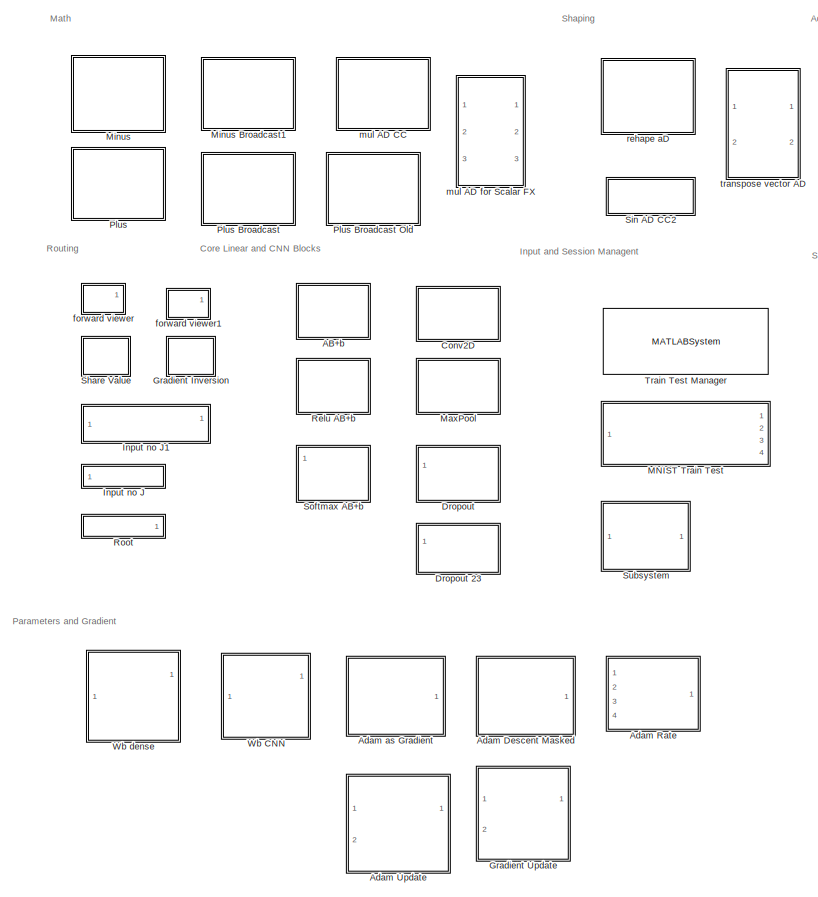
[diagram: root canvas - part 1/2, left side, full height]
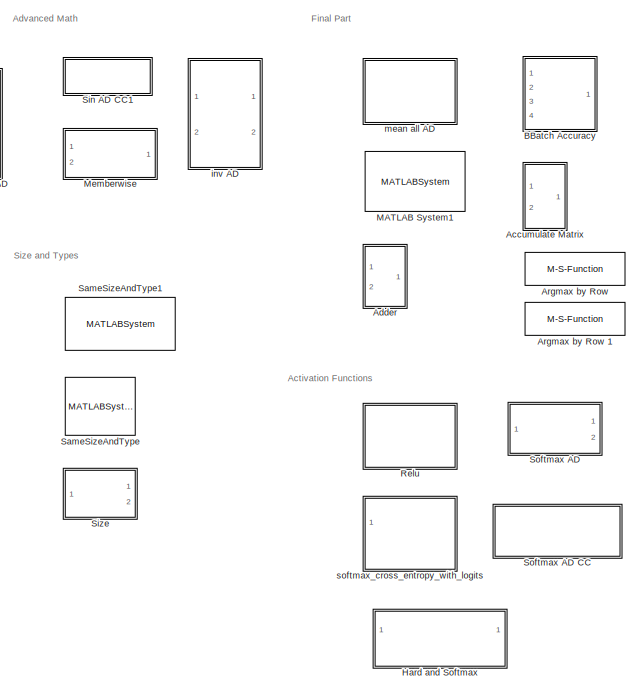
[diagram: root canvas - part 2/2, right side, full height]
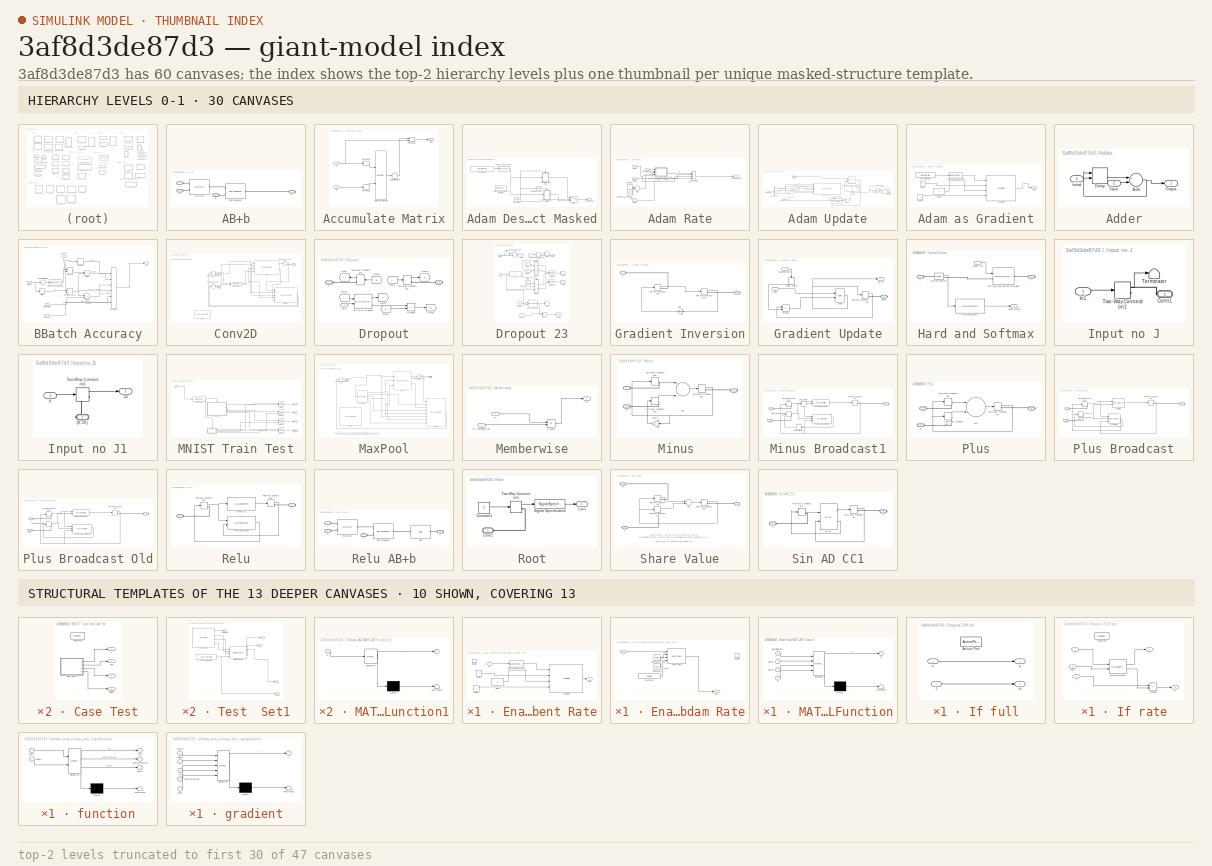
[diagram: thumbnail index - top-2 hierarchy levels (47 canvases (first 30 of 47 shown)) + 10 structural-template representatives of the remaining 13 canvases]
MODEL slx_3af8d3de87d3
KIND library
CONFIG AbsTol = auto
CONFIG EnableMultiTasking = off
CONFIG FixedStep = auto
CONFIG MaxStep = auto
CONFIG MinStep = auto
CONFIG RelTol = 1e-3
CONFIG SampleTimeConstraint = Unconstrained
CONFIG Solver = VariableStepAuto
CONFIG SolverName = VariableStepAuto
CONFIG StartTime = 0.0
CONFIG StopTime = 10.0
BLOCK [SubSystem] AB+b
  Ports = [0, 0, 0, 0, 0, 3, 1]
  RequestExecContextInheritance = off
  Variant = off
BLOCK [PMIOPort] AB+b/A
  Port = 1
  Side = Left
BLOCK [PMIOPort] AB+b/B
  Port = 2
  Side = Left
BLOCK [Reference] AB+b/Plus Broadcast  REF=ad_blocks/Plus Broadcast  (lib defined in slx_3af8d3de87d3)
  Ports = [0, 0, 0, 0, 0, 2, 1]
  SourceBlock = ad_blocks/Plus Broadcast
  SourceType = SubSystem
BLOCK [PMIOPort] AB+b/Y
  Port = 3
  Side = Right
BLOCK [PMIOPort] AB+b/b
  Port = 4
  Side = Left
BLOCK [Reference] AB+b/mul AD CC  REF=ad_blocks/mul AD CC  (lib defined in slx_3af8d3de87d3)
  Ports = [0, 0, 0, 0, 0, 2, 1]
  SourceBlock = ad_blocks/mul AD CC
  SourceType = SubSystem
BLOCK [SubSystem] Accumulate Matrix
  Ports = [2, 1]
  RequestExecContextInheritance = off
  Variant = off
BLOCK [Inport] Accumulate Matrix/In1
  IconDisplay = Port number
BLOCK [Inport] Accumulate Matrix/In2
  IconDisplay = Port number
  Port = 2
BLOCK [Concatenate] Accumulate Matrix/Matrix Concatenate
  ConcatenateDimension = 2
  Mode = Multidimensional array
  Ports = [2, 1]
BLOCK [Outport] Accumulate Matrix/Out1
  IconDisplay = Port number
BLOCK [Reshape] Accumulate Matrix/Reshape1
  Ports = [1, 1]
BLOCK [Reshape] Accumulate Matrix/Reshape2
  Ports = [1, 1]
BLOCK [Reshape] Accumulate Matrix/ReshapeX
  OutputDimensionality = Derive from reference input port
  Ports = [2, 1]
BLOCK [Sum] Accumulate Matrix/Sum of Elements
  CollapseDim = 2
  CollapseMode = Specified dimension
  InputSameDT = off
  Inputs = +
  OutDataTypeStr = Inherit: Inherit via internal rule
  Ports = [1, 1]
  SaturateOnIntegerOverflow = off
BLOCK [SubSystem] Adam Descent Masked
  Ports = [0, 1]
  RequestExecContextInheritance = off
  Variant = off
BLOCK [Outport] Adam Descent Masked/Adam Params
  IconDisplay = Port number
BLOCK [Reference] Adam Descent Masked/Compare To Zero  REF=simulink/Logic and Bit
Operations/Compare
To Zero
  Ports = [1, 1]
  SourceBlock = simulink/Logic and Bit\nOperations/Compare\nTo Zero
  SourceProductBaseCode = SL
  SourceProductName = Simulink
  SourceType = Compare To Zero
BLOCK [Constant] Adam Descent Masked/Constant1
  OutDataTypeStr = Inherit: Inherit via back propagation
  Value = learningrate
BLOCK [Constant] Adam Descent Masked/Constant5
  Value = adam
BLOCK [Reference] Adam Descent Masked/Data Type Conversion Inherited4  REF=simulink/Signal
Attributes/Data Type
Conversion
Inherited
  Commented = on
  Ports = [2, 1]
  SourceBlock = simulink/Signal\nAttributes/Data Type\nConversion\nInherited
  SourceProductBaseCode = SL
  SourceProductName = Simulink
  SourceType = Conversion Inherited
BLOCK [DataTypeConversion] Adam Descent Masked/Data Type Conversion1
  OutDataTypeStr = single
  RndMeth = Floor
  SaturateOnIntegerOverflow = off
BLOCK [SubSystem] Adam Descent Masked/Enable Gradient Rate
  Ports = [1, 1, 1]
  RequestExecContextInheritance = off
  Variant = off
BLOCK [Reference] Adam Descent Masked/Enable Gradient Rate/Adam Rate  REF=ad_blocks/Adam Rate  (lib defined in slx_3af8d3de87d3)
  Ports = [4, 1]
  SourceBlock = ad_blocks/Adam Rate
  SourceType = SubSystem
BLOCK [Constant] Adam Descent Masked/Enable Gradient Rate/Beta1
  OutDataTypeStr = Inherit: Inherit via back propagation
  Value = 0
BLOCK [Constant] Adam Descent Masked/Enable Gradient Rate/Beta2
  OutDataTypeStr = Inherit: Inherit via back propagation
BLOCK [DataTypeConversion] Adam Descent Masked/Enable Gradient Rate/Data Type Conversion2
  OutDataTypeStr = single
  RndMeth = Floor
  SaturateOnIntegerOverflow = off
BLOCK [EnablePort] Adam Descent Masked/Enable Gradient Rate/Enable
  Ports = []
BLOCK [Constant] Adam Descent Masked/Enable Gradient Rate/Epsilon
  OutDataTypeStr = Inherit: Inherit via back propagation
BLOCK [Inport] Adam Descent Masked/Enable Gradient Rate/In1
  IconDisplay = Port number
BLOCK [Outport] Adam Descent Masked/Enable Gradient Rate/Out1
  IconDisplay = Port number
BLOCK [SubSystem] Adam Descent Masked/Enabled Adam Rate
  Ports = [1, 1, 1]
  RequestExecContextInheritance = off
  Variant = off
BLOCK [Reference] Adam Descent Masked/Enabled Adam Rate/Adam Rate  REF=ad_blocks/Adam Rate  (lib defined in slx_3af8d3de87d3)
  Ports = [4, 1]
  SourceBlock = ad_blocks/Adam Rate
  SourceType = SubSystem
BLOCK [Constant] Adam Descent Masked/Enabled Adam Rate/Constant2
  OutDataTypeStr = Inherit: Inherit via back propagation
  Value = beta1
BLOCK [Constant] Adam Descent Masked/Enabled Adam Rate/Constant3
  OutDataTypeStr = Inherit: Inherit via back propagation
  Value = beta2
BLOCK [Constant] Adam Descent Masked/Enabled Adam Rate/Constant4
  OutDataTypeStr = Inherit: Inherit via back propagation
  Value = epsilon
BLOCK [EnablePort] Adam Descent Masked/Enabled Adam Rate/Enable
  Ports = []
BLOCK [Inport] Adam Descent Masked/Enabled Adam Rate/In1
  IconDisplay = Port number
BLOCK [Outport] Adam Descent Masked/Enabled Adam Rate/Out1
  IconDisplay = Port number
BLOCK [Switch] Adam Descent Masked/Switch
  Criteria = u2 > Threshold
  InputSameDT = off
  SaturateOnIntegerOverflow = off
BLOCK [SubSystem] Adam Rate
  Ports = [4, 1]
  RequestExecContextInheritance = off
  Variant = off
BLOCK [Outport] Adam Rate/Adam Params
  IconDisplay = Port number
BLOCK [Sum] Adam Rate/Add
  InputSameDT = off
  OutDataTypeStr = Inherit: Inherit via internal rule
  Ports = [2, 1]
  SaturateOnIntegerOverflow = off
BLOCK [Inport] Adam Rate/Beta1
  IconDisplay = Port number
  Port = 2
BLOCK [Inport] Adam Rate/Beta2
  IconDisplay = Port number
  Port = 3
BLOCK [BusCreator] Adam Rate/Bus Creator
  DisplayOption = bar
  InheritFromInputs = on
  Inputs = 4
  Ports = [4, 1]
BLOCK [Constant] Adam Rate/Constant
BLOCK [Reference] Adam Rate/Counter Free-Running  REF=simulink/Sources/Counter
Free-Running
  Ports = [0, 1]
  SourceBlock = simulink/Sources/Counter\nFree-Running
  SourceProductBaseCode = SL
  SourceProductName = Simulink
  SourceType = Counter Free-Running
BLOCK [Inport] Adam Rate/Epsilon
  IconDisplay = Port number
  Port = 4
BLOCK [SubSystem] Adam Rate/MATLAB Function
  ErrorFcn = Stateflow.Translate.translate
  PermitHierarchicalResolution = ExplicitOnly
  Ports = [4, 1]
  RequestExecContextInheritance = off
  SFBlockType = MATLAB Function
  TreatAsAtomicUnit = on
  Variant = off
BLOCK [Demux] Adam Rate/MATLAB Function/ Demux 
  Outputs = 1
  Ports = [1, 1]
BLOCK [S-Function] Adam Rate/MATLAB Function/ SFunction 
  EnableBusSupport = off
  FunctionName = sf_sfun
  PortCounts = [4 2]
  Ports = [4, 2]
  SFcnIsStateOwnerBlock = off
  SFunctionDeploymentMode = off
  Tag = Stateflow S-Function ad_blocks 2
BLOCK [Terminator] Adam Rate/MATLAB Function/ Terminator 
BLOCK [Inport] Adam Rate/MATLAB Function/beta1
  IconDisplay = Port number
  Port = 2
BLOCK [Inport] Adam Rate/MATLAB Function/beta2
  IconDisplay = Port number
  Port = 3
BLOCK [Inport] Adam Rate/MATLAB Function/learningrate
  IconDisplay = Port number
BLOCK [Outport] Adam Rate/MATLAB Function/ltr
  IconDisplay = Port number
BLOCK [Inport] Adam Rate/MATLAB Function/t
  IconDisplay = Port number
  Port = 4
BLOCK [Inport] Adam Rate/learning rate
  IconDisplay = Port number
BLOCK [SubSystem] Adam Update
  Ports = [2, 1, 0, 0, 0, 0, 1]
  RequestExecContextInheritance = off
  Variant = off
BLOCK [Inport] Adam Update/Adam Params
  IconDisplay = Port number
BLOCK [Sum] Adam Update/Add
  AccumDataTypeStr = Inherit: Same as first input
  InputSameDT = off
  Ports = [2, 1]
  SaturateOnIntegerOverflow = off
BLOCK [BusSelector] Adam Update/Bus Selector
  OutputAsBus = off
  OutputSignals = ltr,epsilon,beta1,beta2
  Ports = [1, 4]
BLOCK [PMIOPort] Adam Update/Conn1
  Port = 1
  Side = Right
BLOCK [Reference] Adam Update/Data Type Conversion Inherited  REF=simulink/Signal
Attributes/Data Type
Conversion
Inherited
  Ports = [2, 1]
  SourceBlock = simulink/Signal\nAttributes/Data Type\nConversion\nInherited
  SourceProductBaseCode = SL
  SourceProductName = Simulink
  SourceType = Conversion Inherited
BLOCK [Delay] Adam Update/Delay
  DelayLength = 1
  InitialConditionSource = Input port
  InputPortMap = u0,p4
  Ports = [2, 1]
BLOCK [From] Adam Update/From
  GotoTag = J
BLOCK [From] Adam Update/From1
  GotoTag = dotrain
  TagVisibility = global
BLOCK [Goto] Adam Update/Goto
  GotoTag = J
BLOCK [MultiPortSwitch] Adam Update/Index Vector
  DataPortOrder = Zero-based contiguous
  InputSameDT = off
  Inputs = 2
  Ports = [3, 1]
  SaturateOnIntegerOverflow = off
  zeroidx = on
BLOCK [Inport] Adam Update/Initial Value (alt)
  IconDisplay = Port number
  Port = 2
BLOCK [MATLABSystem] Adam Update/Make Increment
  MaskDisplay = disp('adam_updateSystem');\nport_label('input',1,'learning_rate');\nport_label('input',2,'epsilon');\nport_label('input',3,'beta1');\nport_label('input',4,'beta2');\nport_label('input',5,'gradient');\nport_label('input',6,'initial_for_size');\nport_label('output',1,'effective_gradient');
  MaskType = adam_updateSystem
  Ports = [6, 1]
  SimulateUsing = Code generation
  System = adam_updateSystem
BLOCK [TwoWayConnection] Adam Update/Two-Way Connection1
  Ports = [1, 1, 0, 0, 0, 0, 1]
BLOCK [Outport] Adam Update/X
  IconDisplay = Port number
BLOCK [SubSystem] Adam as Gradient
  Ports = [0, 1]
  RequestExecContextInheritance = off
  Variant = off
BLOCK [Reference] Adam as Gradient/Adam Rate  REF=ad_blocks/Adam Rate  (lib defined in slx_3af8d3de87d3)
  Ports = [4, 1]
  SourceBlock = ad_blocks/Adam Rate
  SourceType = SubSystem
BLOCK [Constant] Adam as Gradient/Beta1
  OutDataTypeStr = Inherit: Inherit via back propagation
  Value = 0
BLOCK [Constant] Adam as Gradient/Beta2
  OutDataTypeStr = Inherit: Inherit via back propagation
BLOCK [DataTypeConversion] Adam as Gradient/Data Type Conversion2
  OutDataTypeStr = single
  RndMeth = Floor
  SaturateOnIntegerOverflow = off
BLOCK [Constant] Adam as Gradient/Epsilon
  OutDataTypeStr = Inherit: Inherit via back propagation
BLOCK [Constant] Adam as Gradient/Learning Rate1
  Value = learningrate
BLOCK [Outport] Adam as Gradient/Out1
  IconDisplay = Port number
BLOCK [SubSystem] Adder
  Ports = [2, 1]
  RequestExecContextInheritance = off
  Variant = off
BLOCK [Sum] Adder/Add
  InputSameDT = off
  OutDataTypeStr = Inherit: Inherit via internal rule
  Ports = [2, 1]
  SaturateOnIntegerOverflow = off
BLOCK [Delay] Adder/Delay
  DelayLength = 1
  InitialConditionSource = Input port
  InputPortMap = u0,p4
  Ports = [2, 1]
BLOCK [Inport] Adder/Initial
  IconDisplay = Port number
BLOCK [Inport] Adder/Input
  IconDisplay = Port number
  Port = 2
BLOCK [Outport] Adder/Output
  IconDisplay = Port number
BLOCK [M-S-Function] Argmax by Row 
  FunctionName = sfun_argmax
  Ports = [2, 1]
BLOCK [M-S-Function] Argmax by Row 1
  FunctionName = sfun_argmax
  Ports = [2, 1]
BLOCK [SubSystem] BBatch Accuracy
  Ports = [4, 1]
  RequestExecContextInheritance = off
  Variant = off
BLOCK [BusCreator] BBatch Accuracy/Bus Creator
  DisplayOption = bar
  InheritFromInputs = on
  Inputs = 6
  Ports = [6, 1]
BLOCK [DataTypeConversion] BBatch Accuracy/Data Type Conversion1
  RndMeth = Floor
  SaturateOnIntegerOverflow = off
BLOCK [Product] BBatch Accuracy/Divide
  InputSameDT = off
  Inputs = */
  OutDataTypeStr = Inherit: Inherit via internal rule
  Ports = [2, 1]
  RndMeth = Floor
  SaturateOnIntegerOverflow = off
BLOCK [Product] BBatch Accuracy/Divide1
  InputSameDT = off
  Inputs = */
  OutDataTypeStr = Inherit: Inherit via internal rule
  Ports = [2, 1]
  RndMeth = Floor
  SaturateOnIntegerOverflow = off
BLOCK [Inport] BBatch Accuracy/Epochs
  IconDisplay = Port number
  Port = 4
BLOCK [Inport] BBatch Accuracy/Input
  IconDisplay = Port number
  Port = 2
BLOCK [Outport] BBatch Accuracy/Out1
  IconDisplay = Port number
BLOCK [Inport] BBatch Accuracy/Reset
  IconDisplay = Port number
BLOCK [DiscreteIntegrator] BBatch Accuracy/Samples Accum
  ExternalReset = rising
  ICPrevOutput = DiscIntNeverNeededParam
  ICPrevScaledInput = DiscIntNeverNeededParam
  InitialConditionSetting = State (most efficient)
  Ports = [2, 1]
  SampleTime = -1
BLOCK [Sum] BBatch Accuracy/Sum of Elements
  InputSameDT = off
  Inputs = +
  OutDataTypeStr = Inherit: Inherit via internal rule
  Ports = [1, 1]
  SaturateOnIntegerOverflow = off
BLOCK [Inport] BBatch Accuracy/Total Samples
  IconDisplay = Port number
  Port = 3
BLOCK [DiscreteIntegrator] BBatch Accuracy/W update
  ExternalReset = rising
  ICPrevOutput = DiscIntNeverNeededParam
  ICPrevScaledInput = DiscIntNeverNeededParam
  InitialConditionSetting = State (most efficient)
  Ports = [2, 1]
  SampleTime = -1
BLOCK [DiscreteIntegrator] BBatch Accuracy/W update1
  ICPrevOutput = DiscIntNeverNeededParam
  ICPrevScaledInput = DiscIntNeverNeededParam
  InitialConditionSetting = State (most efficient)
  Ports = [1, 1]
  SampleTime = -1
BLOCK [Width] BBatch Accuracy/Width
BLOCK [SubSystem] Conv2D
  Ports = [0, 0, 0, 0, 0, 2, 1]
  RequestExecContextInheritance = off
  Variant = off
BLOCK [MATLABSystem] Conv2D/Gradient
  MaskDisplay = disp('conv2d_grad');\nport_label('input',1,'U_B_Ph_Pw_Q');\nport_label('input',2,'A_B_I_C');\nport_label('input',3,'W_K_C_Q');\nport_label('input',4,'Sel_PKC_IC');\nport_label('input',5,'Xp_BP_KC');\nport_label('output',1,'dzdx_B_Ph_Pw_Q');\nport_label('output',2,'dzdW_K_C_Q');
  MaskType = conv2d_grad
  Ports = [5, 2]
  SimulateUsing = Code generation
  System = conv2d_grad
BLOCK [S-Function] Conv2D/S-Function
  EnableBusSupport = off
  FunctionName = sfun_superconst
  Parameters = 'conv2d_constsetup',2,2,padding,stride
  Ports = [2, 2]
  SFcnIsStateOwnerBlock = off
  SFunctionDeploymentMode = off
BLOCK [MATLABSystem] Conv2D/Setup
  Commented = on
  MaskDisplay = disp('conv2d_setup');\nport_label('input',1,'X');\nport_label('input',2,'W');\nport_label('output',1,'Sel_PKC_IC');\nport_label('output',2,'Zero_Ph_Pw');
  MaskType = conv2d_setup
  Ports = [2, 2]
  SimulateUsing = Interpreted execution
  System = conv2d_setup
  padding = padding
  stride = stride
BLOCK [TwoWayConnection] Conv2D/Two-Way Connection1
  Ports = [1, 1, 0, 0, 0, 0, 1]
BLOCK [TwoWayConnection] Conv2D/Two-Way Connection2
  Ports = [1, 1, 0, 0, 0, 0, 1]
BLOCK [TwoWayConnection] Conv2D/Two-Way Connection3
  Ports = [1, 1, 0, 0, 0, 0, 1]
BLOCK [MATLABSystem] Conv2D/Value
  MaskDisplay = disp('conv2d_eval');\nport_label('input',1,'X_B_I_C');\nport_label('input',2,'W_K_C_Q');\nport_label('input',3,'Sel_PKC_IC');\nport_label('input',4,'Zero_Ph_PW');\nport_label('output',1,'y_B_Ph_Pw_Q');\nport_label('output',2,'Xp_BP_KC');
  MaskType = conv2d_eval
  Ports = [4, 2]
  SimulateUsing = Code generation
  System = conv2d_eval
  padding = -1
  stride = stride
BLOCK [PMIOPort] Conv2D/W
  Port = 2
  Side = Left
BLOCK [PMIOPort] Conv2D/X
  Port = 1
  Side = Left
BLOCK [PMIOPort] Conv2D/Y
  Port = 3
  Side = Right
BLOCK [SubSystem] Dropout
  Ports = [1, 0, 0, 0, 0, 1, 1]
  RequestExecContextInheritance = off
  Variant = off
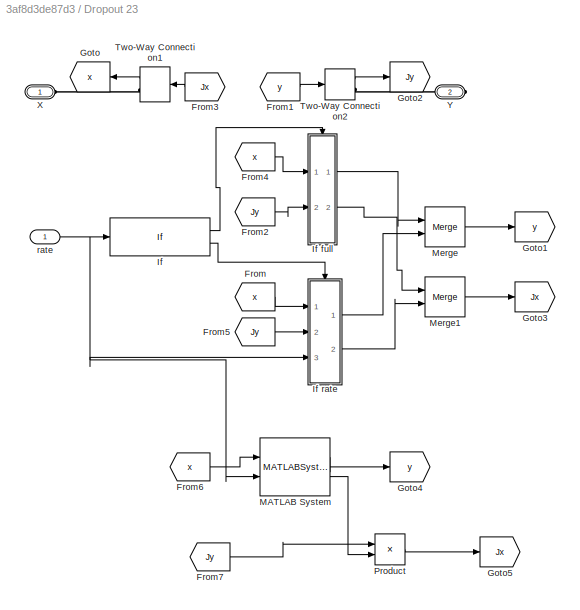
BLOCK [SubSystem] Dropout 23
  Ports = [1, 0, 0, 0, 0, 1, 1]
  RequestExecContextInheritance = off
  Variant = off
BLOCK [From] Dropout 23/From
  Commented = on
  GotoTag = x
BLOCK [From] Dropout 23/From1
  GotoTag = y
BLOCK [From] Dropout 23/From2
  Commented = on
  GotoTag = Jy
BLOCK [From] Dropout 23/From3
  GotoTag = Jx
BLOCK [From] Dropout 23/From4
  Commented = on
  GotoTag = x
BLOCK [From] Dropout 23/From5
  Commented = on
  GotoTag = Jy
BLOCK [From] Dropout 23/From6
  GotoTag = x
BLOCK [From] Dropout 23/From7
  GotoTag = Jy
BLOCK [Goto] Dropout 23/Goto
  GotoTag = x
BLOCK [Goto] Dropout 23/Goto1
  Commented = on
  GotoTag = y
BLOCK [Goto] Dropout 23/Goto2
  GotoTag = Jy
BLOCK [Goto] Dropout 23/Goto3
  Commented = on
  GotoTag = Jx
BLOCK [Goto] Dropout 23/Goto4
  GotoTag = y
BLOCK [Goto] Dropout 23/Goto5
  GotoTag = Jx
BLOCK [If] Dropout 23/If
  Commented = on
  IfExpression = u1 >= 1.0
  Ports = [1, 2]
BLOCK [SubSystem] Dropout 23/If full
  Commented = on
  Ports = [2, 2, 0, 0, 0, 0, 0, 1]
  RequestExecContextInheritance = off
  TreatAsAtomicUnit = on
  Variant = off
BLOCK [ActionPort] Dropout 23/If full/Action Port
BLOCK [Inport] Dropout 23/If full/J
  IconDisplay = Port number
  Port = 2
BLOCK [Outport] Dropout 23/If full/Jx
  IconDisplay = Port number
  Port = 2
BLOCK [Inport] Dropout 23/If full/x
  IconDisplay = Port number
BLOCK [Outport] Dropout 23/If full/y
  IconDisplay = Port number
BLOCK [SubSystem] Dropout 23/If rate
  Commented = on
  Ports = [3, 2, 0, 0, 0, 0, 0, 1]
  RequestExecContextInheritance = off
  TreatAsAtomicUnit = on
  Variant = off
BLOCK [ActionPort] Dropout 23/If rate/Action Port
BLOCK [Inport] Dropout 23/If rate/J
  IconDisplay = Port number
  Port = 2
BLOCK [Outport] Dropout 23/If rate/Jx
  IconDisplay = Port number
  Port = 2
BLOCK [MATLABSystem] Dropout 23/If rate/MATLAB System
  MaskDisplay = disp('dropout_sys');\nport_label('input',1,'x');\nport_label('input',2,'rate');\nport_label('output',1,'y');\nport_label('output',2,'mask');
  MaskType = dropout_sys
  Ports = [2, 2]
  SimulateUsing = Code generation
  System = dropout_sys
BLOCK [Product] Dropout 23/If rate/Product
  InputSameDT = off
  OutDataTypeStr = Inherit: Inherit via internal rule
  Ports = [2, 1]
  RndMeth = Floor
  SaturateOnIntegerOverflow = off
BLOCK [Inport] Dropout 23/If rate/rate
  IconDisplay = Port number
  Port = 3
BLOCK [Inport] Dropout 23/If rate/x
  IconDisplay = Port number
BLOCK [Outport] Dropout 23/If rate/y
  IconDisplay = Port number
BLOCK [MATLABSystem] Dropout 23/MATLAB System
  MaskDisplay = disp('dropout23_sys');\nport_label('input',1,'x');\nport_label('input',2,'rate');\nport_label('output',1,'y');\nport_label('output',2,'mask');
  MaskType = dropout23_sys
  Ports = [2, 2]
  SimulateUsing = Code generation
  System = dropout23_sys
BLOCK [Merge] Dropout 23/Merge
  Commented = on
  Ports = [2, 1]
BLOCK [Merge] Dropout 23/Merge1
  Commented = on
  Ports = [2, 1]
BLOCK [Product] Dropout 23/Product
  InputSameDT = off
  OutDataTypeStr = Inherit: Inherit via internal rule
  Ports = [2, 1]
  RndMeth = Floor
  SaturateOnIntegerOverflow = off
BLOCK [TwoWayConnection] Dropout 23/Two-Way Connection1
  Ports = [1, 1, 0, 0, 0, 0, 1]
BLOCK [TwoWayConnection] Dropout 23/Two-Way Connection2
  Ports = [1, 1, 0, 0, 0, 0, 1]
BLOCK [PMIOPort] Dropout 23/X
  Port = 1
  Side = Left
BLOCK [PMIOPort] Dropout 23/Y
  Port = 2
  Side = Right
BLOCK [Inport] Dropout 23/rate
  IconDisplay = Port number
BLOCK [From] Dropout/From1
  GotoTag = y
BLOCK [From] Dropout/From3
  GotoTag = Jx
BLOCK [From] Dropout/From6
  GotoTag = x
BLOCK [From] Dropout/From7
  GotoTag = Jy
BLOCK [Goto] Dropout/Goto
  GotoTag = x
BLOCK [Goto] Dropout/Goto2
  GotoTag = Jy
BLOCK [Goto] Dropout/Goto4
  GotoTag = y
BLOCK [Goto] Dropout/Goto5
  GotoTag = Jx
BLOCK [MATLABSystem] Dropout/MATLAB System
  MaskDisplay = disp('dropout_sys');\nport_label('input',1,'x');\nport_label('input',2,'rate');\nport_label('output',1,'y');\nport_label('output',2,'mask');
  MaskType = dropout_sys
  Ports = [2, 2]
  SimulateUsing = Code generation
  System = dropout_sys
BLOCK [Product] Dropout/Product
  InputSameDT = off
  OutDataTypeStr = Inherit: Inherit via internal rule
  Ports = [2, 1]
  RndMeth = Floor
  SaturateOnIntegerOverflow = off
BLOCK [TwoWayConnection] Dropout/Two-Way Connection1
  Ports = [1, 1, 0, 0, 0, 0, 1]
BLOCK [TwoWayConnection] Dropout/Two-Way Connection2
  Ports = [1, 1, 0, 0, 0, 0, 1]
BLOCK [PMIOPort] Dropout/X
  Port = 1
  Side = Left
BLOCK [PMIOPort] Dropout/Y
  Port = 2
  Side = Right
BLOCK [Inport] Dropout/rate
  IconDisplay = Port number
BLOCK [SubSystem] Gradient Inversion
  Ports = [0, 0, 0, 0, 0, 1, 1]
  RequestExecContextInheritance = off
  Variant = off
BLOCK [Gain] Gradient Inversion/Gain
  Gain = lambda
  OutDataTypeStr = Inherit: Inherit via internal rule
  ParamDataTypeStr = Inherit: Inherit via internal rule
  SaturateOnIntegerOverflow = off
BLOCK [TwoWayConnection] Gradient Inversion/Two-Way Connection2
  Ports = [1, 1, 0, 0, 0, 0, 1]
BLOCK [TwoWayConnection] Gradient Inversion/Two-Way Connection3
  Ports = [1, 1, 0, 0, 0, 0, 1]
BLOCK [PMIOPort] Gradient Inversion/X
  Port = 2
  Side = Left
BLOCK [PMIOPort] Gradient Inversion/Y
  Port = 1
  Side = Right
BLOCK [SubSystem] Gradient Update
  Ports = [2, 1, 0, 0, 0, 0, 1]
  RequestExecContextInheritance = off
  Variant = off
BLOCK [Reference] Gradient Update/Adder  REF=ad_blocks/Adder  (lib defined in slx_3af8d3de87d3)
  Ports = [2, 1]
  SourceBlock = ad_blocks/Adder
  SourceType = SubSystem
BLOCK [PMIOPort] Gradient Update/Conn1
  Port = 1
  Side = Right
BLOCK [Outport] Gradient Update/Current
  IconDisplay = Port number
BLOCK [Inport] Gradient Update/Initial
  IconDisplay = Port number
  Port = 2
BLOCK [Inport] Gradient Update/Learning Rate
  IconDisplay = Port number
BLOCK [Product] Gradient Update/Product
  InputSameDT = off
  OutDataTypeStr = Inherit: Inherit via internal rule
  Ports = [2, 1]
  RndMeth = Floor
  SaturateOnIntegerOverflow = off
BLOCK [TwoWayConnection] Gradient Update/Two-Way Connection1
  Ports = [1, 1, 0, 0, 0, 0, 1]
BLOCK [UnaryMinus] Gradient Update/Unary Minus
BLOCK [SubSystem] Hard and Softmax
  Ports = [1, 1, 0, 0, 0, 1, 1]
  RequestExecContextInheritance = off
  Variant = off
BLOCK [Outport] Hard and Softmax/Label Output
  IconDisplay = Port number
BLOCK [Inport] Hard and Softmax/Labels Hot
  IconDisplay = Port number
BLOCK [Reference] Hard and Softmax/MATLAB System1  REF=ad_blocks/MATLAB System1  (lib defined in slx_3af8d3de87d3)
  Ports = [1, 1]
  SourceBlock = ad_blocks/MATLAB System1
  SourceType = ArgmaxSystemD2
BLOCK [PMIOPort] Hard and Softmax/X
  Port = 1
  Side = Left
BLOCK [PMIOPort] Hard and Softmax/Y
  Port = 2
  Side = Right
BLOCK [Reference] Hard and Softmax/forward viewer2  REF=ad_blocks/forward viewer  (lib defined in slx_3af8d3de87d3)
  Ports = [0, 1, 0, 0, 0, 1, 1]
  SourceBlock = ad_blocks/forward viewer
BLOCK [Reference] Hard and Softmax/softmax_cross_entropy_with_logits  REF=ad_blocks/softmax_cross_entropy_with_logits  (lib defined in slx_3af8d3de87d3)
  Ports = [1, 0, 0, 0, 0, 1, 1]
  SourceBlock = ad_blocks/softmax_cross_entropy_with_logits
  SourceType = SubSystem
BLOCK [SubSystem] Input no J
  Ports = [1, 0, 0, 0, 0, 0, 1]
  RequestExecContextInheritance = off
  Variant = off
BLOCK [PMIOPort] Input no J/Conn1
  Port = 1
  Side = Right
BLOCK [Inport] Input no J/In1
  IconDisplay = Port number
BLOCK [Terminator] Input no J/Terminator
BLOCK [TwoWayConnection] Input no J/Two-Way Connection1
  Ports = [1, 1, 0, 0, 0, 0, 1]
BLOCK [SubSystem] Input no J1
  Ports = [1, 1, 0, 0, 0, 0, 1]
  RequestExecContextInheritance = off
  Variant = off
BLOCK [PMIOPort] Input no J1/(X,JX)
  Port = 1
  Side = Right
BLOCK [Outport] Input no J1/JX
  IconDisplay = Port number
BLOCK [TwoWayConnection] Input no J1/Two-Way Connection1
  Ports = [1, 1, 0, 0, 0, 0, 1]
BLOCK [Inport] Input no J1/X
  IconDisplay = Port number
BLOCK [MATLABSystem] MATLAB System1
  MaskDisplay = disp('ArgmaxSystemD2');\nport_label('input',1,'x');\nport_label('output',1,'y');
  MaskType = ArgmaxSystemD2
  Ports = [1, 1]
  SimulateUsing = Code generation
  System = ArgmaxSystemD2
BLOCK [SubSystem] MNIST Train Test
  Ports = [1, 4]
  RequestExecContextInheritance = off
  Variant = off
BLOCK [SubSystem] MNIST Train Test/Case Test
  Ports = [0, 4, 0, 0, 0, 0, 0, 1]
  RequestExecContextInheritance = off
  TreatAsAtomicUnit = on
  Variant = off
BLOCK [ActionPort] MNIST Train Test/Case Test/Action Port
BLOCK [SubSystem] MNIST Train Test/Case Test/Test  Set1
  Ports = [0, 4]
  RequestExecContextInheritance = off
  Variant = off
BLOCK [MATLABSystem] MNIST Train Test/Case Test/Test  Set1/MATLAB System
  MaskDisplay = disp('MnistSystemInt');\nport_label('output',1,'indices');
  MaskType = MnistSystemInt
  Ports = [0, 1]
  SimulateUsing = Code generation
  System = MnistSystemInt
  items = BatchSize
  shuffle = 0
  trainset = IsTrainSet
BLOCK [S-Function] MNIST Train Test/Case Test/Test  Set1/S-Function1
  EnableBusSupport = off
  FunctionName = sfun_loadmnist
  Parameters = IsTrainSet
  Ports = [0, 4]
  SFcnIsStateOwnerBlock = off
  SFunctionDeploymentMode = off
BLOCK [Terminator] MNIST Train Test/Case Test/Test  Set1/Terminator2
BLOCK [Reference] MNIST Train Test/Case Test/Test  Set1/Variable Selector  REF=dspindex/Variable
Selector
  Ports = [4, 3]
  SourceBlock = dspindex/Variable\nSelector
  SourceProductBaseCode = DS
  SourceProductName = DSP System Toolbox
  SourceType = Variable Selector
BLOCK [Outport] MNIST Train Test/Case Test/Test  Set1/X
  IconDisplay = Port number
  Port = 3
BLOCK [Outport] MNIST Train Test/Case Test/Test  Set1/Y
  IconDisplay = Port number
BLOCK [Outport] MNIST Train Test/Case Test/Test  Set1/Yhot
  IconDisplay = Port number
  Port = 2
BLOCK [Outport] MNIST Train Test/Case Test/Test  Set1/indices
  IconDisplay = Port number
  Port = 4
BLOCK [Outport] MNIST Train Test/Case Test/X
  IconDisplay = Port number
  Port = 3
BLOCK [Outport] MNIST Train Test/Case Test/Y
  IconDisplay = Port number
BLOCK [Outport] MNIST Train Test/Case Test/Yhot
  IconDisplay = Port number
  Port = 2
BLOCK [Outport] MNIST Train Test/Case Test/indices
  IconDisplay = Port number
  Port = 4
BLOCK [SubSystem] MNIST Train Test/Case Train
  Ports = [0, 4, 0, 0, 0, 0, 0, 1]
  RequestExecContextInheritance = off
  TreatAsAtomicUnit = on
  Variant = off
BLOCK [ActionPort] MNIST Train Test/Case Train/Action Port
BLOCK [SubSystem] MNIST Train Test/Case Train/Train Set
  Ports = [0, 4]
  RequestExecContextInheritance = off
  Variant = off
BLOCK [MATLABSystem] MNIST Train Test/Case Train/Train Set/MATLAB System
  MaskDisplay = disp('MnistSystemInt');\nport_label('output',1,'indices');
  MaskType = MnistSystemInt
  Ports = [0, 1]
  SimulateUsing = Code generation
  System = MnistSystemInt
  items = BatchSize
  shuffle = 0
  trainset = IsTrainSet
BLOCK [S-Function] MNIST Train Test/Case Train/Train Set/S-Function1
  EnableBusSupport = off
  FunctionName = sfun_loadmnist
  Parameters = IsTrainSet
  Ports = [0, 4]
  SFcnIsStateOwnerBlock = off
  SFunctionDeploymentMode = off
BLOCK [Terminator] MNIST Train Test/Case Train/Train Set/Terminator2
BLOCK [Reference] MNIST Train Test/Case Train/Train Set/Variable Selector  REF=dspindex/Variable
Selector
  Ports = [4, 3]
  SourceBlock = dspindex/Variable\nSelector
  SourceProductBaseCode = DS
  SourceProductName = DSP System Toolbox
  SourceType = Variable Selector
BLOCK [Outport] MNIST Train Test/Case Train/Train Set/X
  IconDisplay = Port number
  Port = 3
BLOCK [Outport] MNIST Train Test/Case Train/Train Set/Y
  IconDisplay = Port number
BLOCK [Outport] MNIST Train Test/Case Train/Train Set/Yhot
  IconDisplay = Port number
  Port = 2
BLOCK [Outport] MNIST Train Test/Case Train/Train Set/indices
  IconDisplay = Port number
  Port = 4
BLOCK [Outport] MNIST Train Test/Case Train/X
  IconDisplay = Port number
  Port = 3
BLOCK [Outport] MNIST Train Test/Case Train/Y
  IconDisplay = Port number
BLOCK [Outport] MNIST Train Test/Case Train/Yhot
  IconDisplay = Port number
  Port = 2
BLOCK [Outport] MNIST Train Test/Case Train/indices
  IconDisplay = Port number
  Port = 4
BLOCK [Inport] MNIST Train Test/In1
  IconDisplay = Port number
BLOCK [Merge] MNIST Train Test/Merge
  Ports = [2, 1]
BLOCK [Merge] MNIST Train Test/Merge1
  Ports = [2, 1]
BLOCK [Merge] MNIST Train Test/Merge2
  Ports = [2, 1]
BLOCK [Merge] MNIST Train Test/Merge3
  Ports = [2, 1]
BLOCK [SwitchCase] MNIST Train Test/Switch Case
  Ports = [1, 2]
BLOCK [Outport] MNIST Train Test/X
  IconDisplay = Port number
  Port = 3
BLOCK [Outport] MNIST Train Test/Y 
  IconDisplay = Port number
BLOCK [Outport] MNIST Train Test/Yhot
  IconDisplay = Port number
  Port = 2
BLOCK [Outport] MNIST Train Test/indices
  IconDisplay = Port number
  Port = 4
BLOCK [SubSystem] MaxPool
  Ports = [0, 0, 0, 0, 0, 1, 1]
  RequestExecContextInheritance = off
  Variant = off
BLOCK [MATLABSystem] MaxPool/Gradient
  MaskDisplay = disp('maxpool_grad');\nport_label('input',1,'U_B_Ph_Pw_Q');\nport_label('input',2,'argmaxbase');\nport_label('input',3,'maxindices_BPC');\nport_label('input',4,'argmaxbasescale');\nport_label('input',5,'Zero_Ph_Pw');\nport_label('input',6,'X_B_I_C');\nport_label('input',7,'Sel_PCK_IC');\nport_label('input',8,'Sel_PCK_IC_A');\nport_label('output',1,'J_BIC');
  MaskType = maxpool_grad
  Ports = [8, 1]
  SimulateUsing = Code generation
  System = maxpool_grad
  ksize = ksize
  strides = stride
BLOCK [S-Function] MaxPool/S-Function
  EnableBusSupport = off
  FunctionName = sfun_superconst
  Parameters = 'maxpool_constsetup',1,5,ksize,stride,padding
  Ports = [1, 5]
  SFcnIsStateOwnerBlock = off
  SFunctionDeploymentMode = off
BLOCK [MATLABSystem] MaxPool/Setup
  Commented = on
  MaskDisplay = disp('maxpool_setup');\nport_label('input',1,'X');\nport_label('output',1,'Sel_PCK_IC');\nport_label('output',2,'argmaxbase');\nport_label('output',3,'argmaxbasescale');\nport_label('output',4,'Zero_Ph_Pw');\nport_label('output',5,'Sel_PCK_IC_A');
  MaskType = maxpool_setup
  Ports = [1, 5]
  SimulateUsing = Interpreted execution
  System = maxpool_setup
  ksize = ksize
  padding = padding
  strides = stride
BLOCK [TwoWayConnection] MaxPool/Two-Way Connection1
  Ports = [1, 1, 0, 0, 0, 0, 1]
BLOCK [TwoWayConnection] MaxPool/Two-Way Connection2
  Ports = [1, 1, 0, 0, 0, 0, 1]
BLOCK [MATLABSystem] MaxPool/Value 
  MaskDisplay = disp('maxpool_eval');\nport_label('input',1,'X_B_I_C');\nport_label('input',2,'Sel_PCK_IC');\nport_label('input',3,'Zero_Ph_Pw');\nport_label('output',1,'y_B_P_C');\nport_label('output',2,'maxindices_BPC');
  MaskType = maxpool_eval
  Ports = [3, 2]
  SimulateUsing = Code generation
  System = maxpool_eval
  ksize = ksize
  strides = stride
BLOCK [PMIOPort] MaxPool/X
  Port = 1
  Side = Left
BLOCK [PMIOPort] MaxPool/Y
  Port = 2
  Side = Right
BLOCK [SubSystem] Memberwise
  Ports = [2, 1]
  RequestExecContextInheritance = off
  Variant = off
BLOCK [Outport] Memberwise/JX
  IconDisplay = Port number
BLOCK [Inport] Memberwise/JX memberwise
  IconDisplay = Port number
  Port = 2
BLOCK [Inport] Memberwise/JY
  IconDisplay = Port number
BLOCK [Product] Memberwise/Product
  InputSameDT = off
  OutDataTypeStr = Inherit: Inherit via internal rule
  Ports = [2, 1]
  RndMeth = Floor
  SaturateOnIntegerOverflow = off
BLOCK [SubSystem] Minus 
  Ports = [0, 0, 0, 0, 0, 2, 1]
  RequestExecContextInheritance = off
  Variant = off
BLOCK [PMIOPort] Minus /A
  Port = 1
  Side = Left
BLOCK [Sum] Minus /Add
  InputSameDT = off
  Inputs = +-
  OutDataTypeStr = Inherit: Inherit via internal rule
  Ports = [2, 1]
  SaturateOnIntegerOverflow = off
BLOCK [PMIOPort] Minus /B
  Port = 2
  Side = Left
BLOCK [Gain] Minus /Gain
  Gain = -1
  OutDataTypeStr = Inherit: Inherit via internal rule
  ParamDataTypeStr = Inherit: Inherit via internal rule
  SaturateOnIntegerOverflow = off
BLOCK [TwoWayConnection] Minus /Two-Way Connection1
  Ports = [1, 1, 0, 0, 0, 0, 1]
BLOCK [TwoWayConnection] Minus /Two-Way Connection2
  Ports = [1, 1, 0, 0, 0, 0, 1]
BLOCK [TwoWayConnection] Minus /Two-Way Connection4
  Ports = [1, 1, 0, 0, 0, 0, 1]
BLOCK [PMIOPort] Minus /Y
  Port = 3
  Side = Right
BLOCK [SubSystem] Minus Broadcast1
  Ports = [0, 0, 0, 0, 0, 2, 1]
  RequestExecContextInheritance = off
  Variant = off
BLOCK [PMIOPort] Minus Broadcast1/A
  Port = 1
  Side = Left
BLOCK [PMIOPort] Minus Broadcast1/B
  Port = 2
  Side = Left
BLOCK [M-S-Function] Minus Broadcast1/Plus Broadcast FX
  FunctionName = sfun_plus_broadcast
  Ports = [2, 1]
BLOCK [M-S-Function] Minus Broadcast1/Plus Broadcast GRAD
  FunctionName = sfun_plus_broadcast_grad
  Ports = [3, 2]
BLOCK [TwoWayConnection] Minus Broadcast1/Two-Way Connection
  Ports = [1, 1, 0, 0, 0, 0, 1]
BLOCK [TwoWayConnection] Minus Broadcast1/Two-Way Connection1
  Ports = [1, 1, 0, 0, 0, 0, 1]
BLOCK [TwoWayConnection] Minus Broadcast1/Two-Way Connection2
  Ports = [1, 1, 0, 0, 0, 0, 1]
BLOCK [UnaryMinus] Minus Broadcast1/Unary Minus
BLOCK [UnaryMinus] Minus Broadcast1/Unary Minus1
BLOCK [PMIOPort] Minus Broadcast1/Y
  Port = 3
  Side = Right
BLOCK [SubSystem] Plus
  Ports = [0, 0, 0, 0, 0, 2, 1]
  RequestExecContextInheritance = off
  Variant = off
BLOCK [SubSystem] Plus Broadcast
  Ports = [0, 0, 0, 0, 0, 2, 1]
  RequestExecContextInheritance = off
  Variant = off
BLOCK [SubSystem] Plus Broadcast Old
  Ports = [0, 0, 0, 0, 0, 2, 1]
  RequestExecContextInheritance = off
  Variant = off
BLOCK [PMIOPort] Plus Broadcast Old/A
  Port = 1
  Side = Left
BLOCK [PMIOPort] Plus Broadcast Old/B
  Port = 2
  Side = Left
BLOCK [M-S-Function] Plus Broadcast Old/Plus Broadcast FX
  FunctionName = sfun_plus_broadcast
  Ports = [2, 1]
BLOCK [M-S-Function] Plus Broadcast Old/Plus Broadcast GRAD
  FunctionName = sfun_plus_broadcast_grad
  Ports = [3, 2]
BLOCK [TwoWayConnection] Plus Broadcast Old/Two-Way Connection
  Ports = [1, 1, 0, 0, 0, 0, 1]
BLOCK [TwoWayConnection] Plus Broadcast Old/Two-Way Connection1
  Ports = [1, 1, 0, 0, 0, 0, 1]
BLOCK [TwoWayConnection] Plus Broadcast Old/Two-Way Connection2
  Ports = [1, 1, 0, 0, 0, 0, 1]
BLOCK [PMIOPort] Plus Broadcast Old/Y
  Port = 3
  Side = Right
BLOCK [PMIOPort] Plus Broadcast/A
  Port = 1
  Side = Left
BLOCK [PMIOPort] Plus Broadcast/B
  Port = 2
  Side = Left
BLOCK [TwoWayConnection] Plus Broadcast/Two-Way Connection
  Ports = [1, 1, 0, 0, 0, 0, 1]
BLOCK [TwoWayConnection] Plus Broadcast/Two-Way Connection1
  Ports = [1, 1, 0, 0, 0, 0, 1]
BLOCK [TwoWayConnection] Plus Broadcast/Two-Way Connection2
  Ports = [1, 1, 0, 0, 0, 0, 1]
BLOCK [PMIOPort] Plus Broadcast/Y
  Port = 3
  Side = Right
BLOCK [MATLABSystem] Plus Broadcast/function
  MaskDisplay = disp('SumBroadcast');\nport_label('input',1,'ul');\nport_label('input',2,'ur');\nport_label('output',1,'y');
  MaskType = SumBroadcast
  Ports = [2, 1]
  SimulateUsing = Code generation
  System = SumBroadcast
BLOCK [MATLABSystem] Plus Broadcast/gradient
  MaskDisplay = disp('SumBroadcastGrad');\nport_label('input',1,'ul');\nport_label('input',2,'ur');\nport_label('input',3,'J');\nport_label('output',1,'Jl');\nport_label('output',2,'Jr');
  MaskType = SumBroadcastGrad
  Ports = [3, 2]
  SimulateUsing = Code generation
  System = SumBroadcastGrad
BLOCK [PMIOPort] Plus/A
  Port = 1
  Side = Left
BLOCK [Sum] Plus/Add
  InputSameDT = off
  OutDataTypeStr = Inherit: Inherit via internal rule
  Ports = [2, 1]
  SaturateOnIntegerOverflow = off
BLOCK [PMIOPort] Plus/B
  Port = 2
  Side = Left
BLOCK [TwoWayConnection] Plus/Two-Way Connection
  Ports = [1, 1, 0, 0, 0, 0, 1]
BLOCK [TwoWayConnection] Plus/Two-Way Connection1
  Ports = [1, 1, 0, 0, 0, 0, 1]
BLOCK [TwoWayConnection] Plus/Two-Way Connection2
  Ports = [1, 1, 0, 0, 0, 0, 1]
BLOCK [PMIOPort] Plus/Y
  Port = 3
  Side = Right
BLOCK [SubSystem] Relu
  Ports = [0, 0, 0, 0, 0, 1, 1]
  RequestExecContextInheritance = off
  Variant = off
BLOCK [SubSystem] Relu AB+b
  Ports = [0, 0, 0, 0, 0, 3, 1]
  RequestExecContextInheritance = off
  Variant = off
BLOCK [PMIOPort] Relu AB+b/A
  Port = 1
  Side = Left
BLOCK [PMIOPort] Relu AB+b/B
  Port = 2
  Side = Left
BLOCK [Reference] Relu AB+b/Plus Broadcast  REF=ad_blocks/Plus Broadcast  (lib defined in slx_3af8d3de87d3)
  Ports = [0, 0, 0, 0, 0, 2, 1]
  SourceBlock = ad_blocks/Plus Broadcast
  SourceType = SubSystem
BLOCK [Reference] Relu AB+b/Relu  REF=ad_blocks/Relu  (lib defined in slx_3af8d3de87d3)
  Ports = [0, 0, 0, 0, 0, 1, 1]
  SourceBlock = ad_blocks/Relu
  SourceType = SubSystem
BLOCK [PMIOPort] Relu AB+b/Y
  Port = 3
  Side = Right
BLOCK [PMIOPort] Relu AB+b/b
  Port = 4
  Side = Left
BLOCK [Reference] Relu AB+b/mul AD CC  REF=ad_blocks/mul AD CC  (lib defined in slx_3af8d3de87d3)
  Ports = [0, 0, 0, 0, 0, 2, 1]
  SourceBlock = ad_blocks/mul AD CC
  SourceType = SubSystem
BLOCK [MATLABSystem] Relu/MATLAB System
  MaskDisplay = disp('ReluGradient_sys');\nport_label('input',1,'X');\nport_label('input',2,'JY');\nport_label('output',1,'JX');
  MaskType = ReluGradient_sys
  Ports = [2, 1]
  SimulateUsing = Code generation
  System = ReluGradient_sys
BLOCK [TwoWayConnection] Relu/Two-Way Connection1
  Ports = [1, 1, 0, 0, 0, 0, 1]
BLOCK [TwoWayConnection] Relu/Two-Way Connection2
  Ports = [1, 1, 0, 0, 0, 0, 1]
BLOCK [PMIOPort] Relu/X
  Port = 1
  Side = Left
BLOCK [PMIOPort] Relu/Y
  Port = 2
  Side = Right
BLOCK [MATLABSystem] Relu/max(x,0)
  MaskDisplay = disp('Max0System');\nport_label('input',1,'x');\nport_label('output',1,'y');
  MaskType = Max0System
  Ports = [1, 1]
  SimulateUsing = Code generation
  System = Max0System
BLOCK [SubSystem] Root
  Description = Top level AD block: gets the incoming value, pushes the scalar 1 gradient
  Ports = [0, 1, 0, 0, 0, 1]
  RequestExecContextInheritance = off
  Variant = off
BLOCK [PMIOPort] Root/Conn1
  Port = 1
  Side = Left
BLOCK [Constant] Root/Constant1
  OutDataTypeStr = single
BLOCK [Outport] Root/Loss
  IconDisplay = Port number
BLOCK [SignalSpecification] Root/Signal Specification
  Dimensions = 1
  VarSizeSig = No
BLOCK [TwoWayConnection] Root/Two-Way Connection1
  Ports = [1, 1, 0, 0, 0, 0, 1]
BLOCK [MATLABSystem] SameSizeAndType
  Ports = [1, 1]
BLOCK [MATLABSystem] SameSizeAndType1
  MaskDisplay = disp('samesizetype_sys');\nport_label('input',1,'uref');\nport_label('input',2,'u');\nport_label('output',1,'y');
  MaskType = samesizetype_sys
  Ports = [2, 1]
  SimulateUsing = Code generation
  System = samesizetype_sys
BLOCK [SubSystem] Share Value
  Ports = [0, 0, 0, 0, 0, 1, 2]
  RequestExecContextInheritance = off
  Variant = off
BLOCK [Sum] Share Value/Add
  InputSameDT = off
  OutDataTypeStr = Inherit: Inherit via internal rule
  Ports = [2, 1]
  SaturateOnIntegerOverflow = off
BLOCK [TwoWayConnection] Share Value/Two-Way Connection1
  Ports = [1, 1, 0, 0, 0, 0, 1]
BLOCK [TwoWayConnection] Share Value/Two-Way Connection2
  Ports = [1, 1, 0, 0, 0, 0, 1]
BLOCK [TwoWayConnection] Share Value/Two-Way Connection3
  Ports = [1, 1, 0, 0, 0, 0, 1]
BLOCK [PMIOPort] Share Value/X
  Port = 1
  Side = Left
BLOCK [PMIOPort] Share Value/X1
  Port = 2
  Side = Right
BLOCK [PMIOPort] Share Value/X2
  Port = 3
  Side = Right
BLOCK [SubSystem] Sin AD CC1
  Ports = [0, 0, 0, 0, 0, 1, 1]
  RequestExecContextInheritance = off
  Variant = off
BLOCK [TwoWayConnection] Sin AD CC1/Two-Way Connection
  Ports = [1, 1, 0, 0, 0, 0, 1]
BLOCK [TwoWayConnection] Sin AD CC1/Two-Way Connection1
  Ports = [1, 1, 0, 0, 0, 0, 1]
BLOCK [PMIOPort] Sin AD CC1/X
  Port = 1
  Side = Left
BLOCK [PMIOPort] Sin AD CC1/Y
  Port = 2
  Side = Right
BLOCK [Reference] Sin AD CC1/inv AD  REF=ad_blocks/inv AD  (lib defined in slx_3af8d3de87d3)
  Ports = [2, 2]
  SourceBlock = ad_blocks/inv AD
  SourceType = SubSystem
BLOCK [SubSystem] Sin AD CC2
  Ports = [0, 0, 0, 0, 0, 1, 1]
  RequestExecContextInheritance = off
  Variant = off
BLOCK [TwoWayConnection] Sin AD CC2/Two-Way Connection
  Ports = [1, 1, 0, 0, 0, 0, 1]
BLOCK [TwoWayConnection] Sin AD CC2/Two-Way Connection1
  Ports = [1, 1, 0, 0, 0, 0, 1]
BLOCK [PMIOPort] Sin AD CC2/X
  Port = 1
  Side = Left
BLOCK [PMIOPort] Sin AD CC2/Y
  Port = 2
  Side = Right
BLOCK [Reference] Sin AD CC2/transpose vector AD  REF=ad_blocks/transpose vector AD  (lib defined in slx_3af8d3de87d3)
  Ports = [2, 2]
  SourceBlock = ad_blocks/transpose vector AD
  SourceType = SubSystem
BLOCK [SubSystem] Size
  ErrorFcn = Stateflow.Translate.translate
  PermitHierarchicalResolution = ExplicitOnly
  Ports = [1, 2]
  RequestExecContextInheritance = off
  SFBlockType = MATLAB Function
  TreatAsAtomicUnit = on
  Variant = off
BLOCK [Demux] Size/ Demux 
  Outputs = 1
  Ports = [1, 1]
BLOCK [S-Function] Size/ SFunction 
  EnableBusSupport = off
  FunctionName = sf_sfun
  PortCounts = [1 3]
  Ports = [1, 3]
  SFcnIsStateOwnerBlock = off
  SFunctionDeploymentMode = off
  Tag = Stateflow S-Function ad_blocks 13
BLOCK [Terminator] Size/ Terminator 
BLOCK [Outport] Size/n
  IconDisplay = Port number
BLOCK [Outport] Size/s
  IconDisplay = Port number
  Port = 2
BLOCK [Inport] Size/u
  IconDisplay = Port number
BLOCK [SubSystem] Softmax AB+b
  Ports = [1, 0, 0, 0, 0, 3, 1]
  RequestExecContextInheritance = off
  Variant = off
BLOCK [PMIOPort] Softmax AB+b/A
  Port = 1
  Side = Left
BLOCK [PMIOPort] Softmax AB+b/B
  Port = 2
  Side = Left
BLOCK [Inport] Softmax AB+b/In1
  IconDisplay = Port number
BLOCK [Reference] Softmax AB+b/Plus Broadcast  REF=ad_blocks/Plus Broadcast  (lib defined in slx_3af8d3de87d3)
  Ports = [0, 0, 0, 0, 0, 2, 1]
  SourceBlock = ad_blocks/Plus Broadcast
  SourceType = SubSystem
BLOCK [PMIOPort] Softmax AB+b/Y
  Port = 3
  Side = Right
BLOCK [PMIOPort] Softmax AB+b/b
  Port = 4
  Side = Left
BLOCK [Reference] Softmax AB+b/mul AD CC  REF=ad_blocks/mul AD CC  (lib defined in slx_3af8d3de87d3)
  Ports = [0, 0, 0, 0, 0, 2, 1]
  SourceBlock = ad_blocks/mul AD CC
  SourceType = SubSystem
BLOCK [Reference] Softmax AB+b/softmax_cross_entropy_with_logits  REF=ad_blocks/softmax_cross_entropy_with_logits  (lib defined in slx_3af8d3de87d3)
  Ports = [1, 0, 0, 0, 0, 1, 1]
  SourceBlock = ad_blocks/softmax_cross_entropy_with_logits
  SourceType = SubSystem
BLOCK [SubSystem] Softmax AD
  Ports = [1, 2]
  RequestExecContextInheritance = off
  ShowPortLabels = none
  Variant = off
BLOCK [SubSystem] Softmax AD CC
  Ports = [0, 0, 0, 0, 0, 1, 1]
  RequestExecContextInheritance = off
  ShowPortLabels = none
  Variant = off
BLOCK [Reference] Softmax AD CC/Memberwise  REF=ad_blocks/Memberwise  (lib defined in slx_3af8d3de87d3)
  Ports = [2, 1]
  SourceBlock = ad_blocks/Memberwise
  SourceType = SubSystem
BLOCK [Reference] Softmax AD CC/Softmax AD  REF=ad_blocks/Softmax AD  (lib defined in slx_3af8d3de87d3)
  Ports = [1, 2]
  SourceBlock = ad_blocks/Softmax AD
BLOCK [TwoWayConnection] Softmax AD CC/Two-Way Connection
  Ports = [1, 1, 0, 0, 0, 0, 1]
BLOCK [TwoWayConnection] Softmax AD CC/Two-Way Connection1
  Ports = [1, 1, 0, 0, 0, 0, 1]
BLOCK [PMIOPort] Softmax AD CC/X
  Port = 1
  Side = Left
BLOCK [PMIOPort] Softmax AD CC/Y
  Port = 2
  Side = Right
BLOCK [SubSystem] Softmax AD/MATLAB Function1
  ErrorFcn = Stateflow.Translate.translate
  PermitHierarchicalResolution = ExplicitOnly
  Ports = [1, 1]
  RequestExecContextInheritance = off
  SFBlockType = MATLAB Function
  TreatAsAtomicUnit = on
  Variant = off
BLOCK [Demux] Softmax AD/MATLAB Function1/ Demux 
  Outputs = 1
  Ports = [1, 1]
BLOCK [S-Function] Softmax AD/MATLAB Function1/ SFunction 
  EnableBusSupport = off
  FunctionName = sf_sfun
  PortCounts = [1 2]
  Ports = [1, 2]
  SFcnIsStateOwnerBlock = off
  SFunctionDeploymentMode = off
  Tag = Stateflow S-Function ad_blocks 7
BLOCK [Terminator] Softmax AD/MATLAB Function1/ Terminator 
BLOCK [Inport] Softmax AD/MATLAB Function1/u
  IconDisplay = Port number
BLOCK [Outport] Softmax AD/MATLAB Function1/y
  IconDisplay = Port number
BLOCK [SubSystem] Softmax AD/MATLAB Function2
  ErrorFcn = Stateflow.Translate.translate
  PermitHierarchicalResolution = ExplicitOnly
  Ports = [1, 1]
  RequestExecContextInheritance = off
  SFBlockType = MATLAB Function
  TreatAsAtomicUnit = on
  Variant = off
BLOCK [Demux] Softmax AD/MATLAB Function2/ Demux 
  Outputs = 1
  Ports = [1, 1]
BLOCK [S-Function] Softmax AD/MATLAB Function2/ SFunction 
  EnableBusSupport = off
  FunctionName = sf_sfun
  PortCounts = [1 2]
  Ports = [1, 2]
  SFcnIsStateOwnerBlock = off
  SFunctionDeploymentMode = off
  Tag = Stateflow S-Function ad_blocks 8
BLOCK [Terminator] Softmax AD/MATLAB Function2/ Terminator 
BLOCK [Inport] Softmax AD/MATLAB Function2/u
  IconDisplay = Port number
BLOCK [Outport] Softmax AD/MATLAB Function2/y
  IconDisplay = Port number
BLOCK [Inport] Softmax AD/X
  IconDisplay = Port number
BLOCK [Outport] Softmax AD/Y
  IconDisplay = Port number
BLOCK [Outport] Softmax AD/dX
  IconDisplay = Port number
  Port = 2
BLOCK [SubSystem] Subsystem
  Ports = [1, 1]
  RequestExecContextInheritance = off
  Variant = off
BLOCK [Constant] Subsystem/Constant
  Value = dropout_rate
BLOCK [Constant] Subsystem/Constant1
  Value = 1.0
BLOCK [Switch] Subsystem/Switch
  Criteria = u2 ~= 0
  InputSameDT = off
  SaturateOnIntegerOverflow = off
BLOCK [Inport] Subsystem/dotrain
  IconDisplay = Port number
BLOCK [Outport] Subsystem/real rate
  IconDisplay = Port number
BLOCK [MATLABSystem] Train Test Manager
  MaskDisplay = disp('train_test_mgr');\nport_label('output',1,'dotrain');\nport_label('output',2,'instop');\nport_label('output',3,'samples');\nport_label('output',4,'iteration');\nport_label('output',5,'newepoch');
  MaskType = train_test_mgr
  Ports = [0, 5]
  SimulateUsing = Code generation
  System = train_test_mgr
  batchsize = BatchSize
  epochs = 2
  skiptrain = 0
  testsize = 10000
  trainsize = 60000
BLOCK [SubSystem] Wb CNN
  Ports = [1, 1, 0, 0, 0, 0, 2]
  RequestExecContextInheritance = off
  Variant = off
BLOCK [Inport] Wb CNN/Adam Params
  IconDisplay = Port number
BLOCK [Reference] Wb CNN/Adam Update  REF=ad_blocks/Adam Update  (lib defined in slx_3af8d3de87d3)
  Ports = [2, 1, 0, 0, 0, 0, 1]
  SourceBlock = ad_blocks/Adam Update
  SourceType = SubSystem
BLOCK [Reference] Wb CNN/Adam Update1  REF=ad_blocks/Adam Update  (lib defined in slx_3af8d3de87d3)
  Ports = [2, 1, 0, 0, 0, 0, 1]
  SourceBlock = ad_blocks/Adam Update
  SourceType = SubSystem
BLOCK [BusCreator] Wb CNN/Bus Creator
  DisplayOption = bar
  InheritFromInputs = on
  Inputs = 2
  Ports = [2, 1]
BLOCK [SignalSpecification] Wb CNN/Signal Specification
  Dimensions = [Fo]
BLOCK [SignalSpecification] Wb CNN/Signal Specification1
  Dimensions = [Fo,Fi,K,K]
BLOCK [PMIOPort] Wb CNN/W
  Port = 1
  Side = Right
BLOCK [Constant] Wb CNN/W_conv1
  OutDataTypeStr = single
  Value = truncated_normal([Fo,Fi,K,K],0,0.1,single(0))
BLOCK [Outport] Wb CNN/Wbout
  IconDisplay = Port number
BLOCK [PMIOPort] Wb CNN/b
  Port = 2
  Side = Right
BLOCK [Constant] Wb CNN/b_conv1
  OutDataTypeStr = single
  Value = 0.1*ones(Fo,1)
BLOCK [SubSystem] Wb dense
  Ports = [1, 1, 0, 0, 0, 0, 2]
  RequestExecContextInheritance = off
  Variant = off
BLOCK [Inport] Wb dense/Adam Params
  IconDisplay = Port number
BLOCK [BusCreator] Wb dense/Bus Creator
  DisplayOption = bar
  InheritFromInputs = on
  Inputs = 2
  Ports = [2, 1]
BLOCK [SignalSpecification] Wb dense/Signal Specification
  Dimensions = [wshape(1)]
BLOCK [SignalSpecification] Wb dense/Signal Specification1
  Dimensions = wshape
BLOCK [PMIOPort] Wb dense/W
  Port = 1
  Side = Right
BLOCK [Reference] Wb dense/W Update  REF=ad_blocks/Adam Update  (lib defined in slx_3af8d3de87d3)
  Ports = [2, 1, 0, 0, 0, 0, 1]
  SourceBlock = ad_blocks/Adam Update
  SourceType = SubSystem
BLOCK [Constant] Wb dense/W_conv1
  OutDataTypeStr = single
  Value = truncated_normal(wshape,0,0.1,single(0))
BLOCK [Outport] Wb dense/Wbout
  IconDisplay = Port number
BLOCK [PMIOPort] Wb dense/b
  Port = 2
  Side = Right
BLOCK [Reference] Wb dense/b Update  REF=ad_blocks/Adam Update  (lib defined in slx_3af8d3de87d3)
  Ports = [2, 1, 0, 0, 0, 0, 1]
  SourceBlock = ad_blocks/Adam Update
  SourceType = SubSystem
BLOCK [Constant] Wb dense/b_conv1
  OutDataTypeStr = single
  Value = 0.1*ones([wshape(1),1])
BLOCK [SubSystem] forward viewer
  Ports = [0, 1, 0, 0, 0, 1, 1]
  RequestExecContextInheritance = off
  Variant = off
BLOCK [TwoWayConnection] forward viewer/Two-Way Connection1
  Ports = [1, 1, 0, 0, 0, 0, 1]
BLOCK [TwoWayConnection] forward viewer/Two-Way Connection2
  Ports = [1, 1, 0, 0, 0, 0, 1]
BLOCK [PMIOPort] forward viewer/X
  Port = 1
  Side = Left
BLOCK [PMIOPort] forward viewer/Y
  Port = 2
  Side = Right
BLOCK [Outport] forward viewer/x
  IconDisplay = Port number
BLOCK [SubSystem] forward viewer1
  Ports = [0, 1, 0, 0, 0, 1, 1]
  RequestExecContextInheritance = off
  Variant = off
BLOCK [Outport] forward viewer1/J
  IconDisplay = Port number
BLOCK [TwoWayConnection] forward viewer1/Two-Way Connection1
  Ports = [1, 1, 0, 0, 0, 0, 1]
BLOCK [TwoWayConnection] forward viewer1/Two-Way Connection2
  Ports = [1, 1, 0, 0, 0, 0, 1]
BLOCK [PMIOPort] forward viewer1/X
  Port = 1
  Side = Left
BLOCK [PMIOPort] forward viewer1/Y
  Port = 2
  Side = Right
BLOCK [SubSystem] inv AD
  Ports = [2, 2]
  RequestExecContextInheritance = off
  Variant = off
BLOCK [Gain] inv AD/Gain
  Gain = -1
  OutDataTypeStr = Inherit: Inherit via internal rule
  ParamDataTypeStr = Inherit: Inherit via internal rule
  SaturateOnIntegerOverflow = off
BLOCK [Outport] inv AD/JX
  IconDisplay = Port number
  Port = 2
BLOCK [Inport] inv AD/JY
  IconDisplay = Port number
  Port = 2
BLOCK [Product] inv AD/Product
  InputSameDT = off
  Inputs = ***
  Multiplication = Matrix(*)
  OutDataTypeStr = Inherit: Inherit via internal rule
  Ports = [3, 1]
  RndMeth = Floor
  SaturateOnIntegerOverflow = off
BLOCK [Product] inv AD/Product1
  InputSameDT = off
  Inputs = /
  Multiplication = Matrix(*)
  OutDataTypeStr = Inherit: Inherit via internal rule
  Ports = [1, 1]
  RndMeth = Floor
  SaturateOnIntegerOverflow = off
BLOCK [Inport] inv AD/X
  IconDisplay = Port number
BLOCK [Outport] inv AD/Y
  IconDisplay = Port number
BLOCK [SubSystem] mean all AD
  Ports = [0, 0, 0, 0, 0, 1, 1]
  RequestExecContextInheritance = off
  Variant = off
BLOCK [Product] mean all AD/Divide
  InputSameDT = off
  Inputs = */
  OutDataTypeStr = Inherit: Inherit via internal rule
  Ports = [2, 1]
  RndMeth = Floor
  SaturateOnIntegerOverflow = off
BLOCK [MATLABSystem] mean all AD/MATLAB System
  MaskDisplay = disp('MeanGradient_sys');\nport_label('input',1,'X');\nport_label('input',2,'JY');\nport_label('output',1,'JX');
  MaskType = MeanGradient_sys
  Ports = [2, 1]
  SimulateUsing = Code generation
  System = MeanGradient_sys
BLOCK [Sum] mean all AD/Sum of Elements
  InputSameDT = off
  Inputs = +
  OutDataTypeStr = Inherit: Inherit via internal rule
  Ports = [1, 1]
  SaturateOnIntegerOverflow = off
BLOCK [TwoWayConnection] mean all AD/Two-Way Connection
  Ports = [1, 1, 0, 0, 0, 0, 1]
BLOCK [TwoWayConnection] mean all AD/Two-Way Connection1
  Ports = [1, 1, 0, 0, 0, 0, 1]
BLOCK [Width] mean all AD/Width
  DataType = single
BLOCK [PMIOPort] mean all AD/X
  Port = 1
  Side = Left
BLOCK [PMIOPort] mean all AD/Y
  Port = 2
  Side = Right
BLOCK [SubSystem] mul AD CC
  Ports = [0, 0, 0, 0, 0, 2, 1]
  RequestExecContextInheritance = off
  Variant = off
BLOCK [PMIOPort] mul AD CC/A
  Port = 1
  Side = Left
BLOCK [PMIOPort] mul AD CC/B
  Port = 2
  Side = Left
BLOCK [TwoWayConnection] mul AD CC/Two-Way Connection
  Ports = [1, 1, 0, 0, 0, 0, 1]
BLOCK [TwoWayConnection] mul AD CC/Two-Way Connection1
  Ports = [1, 1, 0, 0, 0, 0, 1]
BLOCK [TwoWayConnection] mul AD CC/Two-Way Connection2
  Ports = [1, 1, 0, 0, 0, 0, 1]
BLOCK [PMIOPort] mul AD CC/Y
  Port = 3
  Side = Right
BLOCK [Reference] mul AD CC/mul AD for Scalar FX  REF=ad_blocks/mul AD for Scalar FX  (lib defined in slx_3af8d3de87d3)
  Ports = [3, 3]
  SourceBlock = ad_blocks/mul AD for Scalar FX
  SourceType = SubSystem
BLOCK [SubSystem] mul AD for Scalar FX
  Ports = [3, 3]
  RequestExecContextInheritance = off
  Variant = off
BLOCK [Inport] mul AD for Scalar FX/A
  IconDisplay = Port number
BLOCK [Inport] mul AD for Scalar FX/B
  IconDisplay = Port number
  Port = 2
BLOCK [Product] mul AD for Scalar FX/Divide
  InputSameDT = off
  Inputs = **
  Multiplication = Matrix(*)
  OutDataTypeStr = Inherit: Inherit via internal rule
  Ports = [2, 1]
  RndMeth = Floor
  SaturateOnIntegerOverflow = off
BLOCK [Inport] mul AD for Scalar FX/J
  IconDisplay = Port number
  Port = 3
BLOCK [Outport] mul AD for Scalar FX/JA
  IconDisplay = Port number
  Port = 2
BLOCK [Outport] mul AD for Scalar FX/JB
  IconDisplay = Port number
  Port = 3
BLOCK [MATLABSystem] mul AD for Scalar FX/MATLAB System
  MaskDisplay = disp('JBt_sys');\nport_label('input',1,'J');\nport_label('input',2,'B');\nport_label('output',1,'y');
  MaskType = JBt_sys
  Ports = [2, 1]
  SimulateUsing = Code generation
  System = JBt_sys
BLOCK [MATLABSystem] mul AD for Scalar FX/MATLAB System1
  MaskDisplay = disp('AtJ_sys');\nport_label('input',1,'J');\nport_label('input',2,'A');\nport_label('output',1,'y');
  MaskType = AtJ_sys
  Ports = [2, 1]
  SimulateUsing = Code generation
  System = AtJ_sys
BLOCK [Outport] mul AD for Scalar FX/Y
  IconDisplay = Port number
BLOCK [SubSystem] rehape aD
  Ports = [0, 0, 0, 0, 0, 1, 1]
  RequestExecContextInheritance = off
  Variant = off
BLOCK [TwoWayConnection] rehape aD/Two-Way Connection
  Ports = [1, 1, 0, 0, 0, 0, 1]
BLOCK [TwoWayConnection] rehape aD/Two-Way Connection1
  Ports = [1, 1, 0, 0, 0, 0, 1]
BLOCK [PMIOPort] rehape aD/X
  Port = 1
  Side = Left
BLOCK [PMIOPort] rehape aD/Y
  Port = 2
  Side = Right
BLOCK [MATLABSystem] rehape aD/function
  MaskDisplay = disp('ReshapeSystem');\nport_label('input',1,'x');\nport_label('output',1,'y');
  MaskType = ReshapeSystem
  Ports = [1, 1]
  SimulateUsing = Code generation
  System = ReshapeSystem
  shape = shape
BLOCK [MATLABSystem] rehape aD/gradient
  MaskDisplay = disp('ReshapeGradSystem');\nport_label('input',1,'x');\nport_label('input',2,'J');\nport_label('output',1,'y');
  MaskType = ReshapeGradSystem
  Ports = [2, 1]
  SimulateUsing = Code generation
  System = ReshapeGradSystem
BLOCK [SubSystem] softmax_cross_entropy_with_logits
  Ports = [1, 0, 0, 0, 0, 1, 1]
  RequestExecContextInheritance = off
  Variant = off
BLOCK [Inport] softmax_cross_entropy_with_logits/Labels
  IconDisplay = Port number
BLOCK [PMIOPort] softmax_cross_entropy_with_logits/Logits
  Port = 1
  Side = Left
BLOCK [MATLABSystem] softmax_cross_entropy_with_logits/MATLAB System
  MaskDisplay = disp('softmax_cross_entropy_with_logitsSystem');\nport_label('input',1,'xlogits');\nport_label('input',2,'xlabels');\nport_label('output',1,'loss');\nport_label('output',2,'logitsoffsetted');\nport_label('output',3,'sumx');
  MaskType = softmax_cross_entropy_with_logitsSystem
  Ports = [2, 3]
  SimulateUsing = Code generation
  System = softmax_cross_entropy_with_logitsSystem
  classdim = 1
BLOCK [MATLABSystem] softmax_cross_entropy_with_logits/MATLAB System1
  MaskDisplay = disp('softmax_cross_entropy_with_logitsGradSystem');\nport_label('input',1,'logits');\nport_label('input',2,'labels');\nport_label('input',3,'Jin');\nport_label('input',4,'logitsoffsetted');\nport_label('input',5,'sumx');\nport_label('output',1,'J');
  MaskType = softmax_cross_entropy_with_logitsGradSystem
  Ports = [5, 1]
  SimulateUsing = Code generation
  System = softmax_cross_entropy_with_logitsGradSystem
  classdim = 1
BLOCK [TwoWayConnection] softmax_cross_entropy_with_logits/Two-Way Connection
  Ports = [1, 1, 0, 0, 0, 0, 1]
BLOCK [TwoWayConnection] softmax_cross_entropy_with_logits/Two-Way Connection1
  Ports = [1, 1, 0, 0, 0, 0, 1]
BLOCK [PMIOPort] softmax_cross_entropy_with_logits/Y
  Port = 2
  Side = Right
BLOCK [SubSystem] softmax_cross_entropy_with_logits/function
  Commented = on
  ErrorFcn = Stateflow.Translate.translate
  PermitHierarchicalResolution = ExplicitOnly
  Ports = [2, 3]
  RequestExecContextInheritance = off
  SFBlockType = MATLAB Function
  TreatAsAtomicUnit = on
  Variant = off
BLOCK [Demux] softmax_cross_entropy_with_logits/function/ Demux 
  Outputs = 1
  Ports = [1, 1]
BLOCK [S-Function] softmax_cross_entropy_with_logits/function/ SFunction 
  EnableBusSupport = off
  FunctionName = sf_sfun
  PortCounts = [2 4]
  Ports = [2, 4]
  SFcnIsStateOwnerBlock = off
  SFunctionDeploymentMode = off
  Tag = Stateflow S-Function ad_blocks 3
BLOCK [Terminator] softmax_cross_entropy_with_logits/function/ Terminator 
BLOCK [Inport] softmax_cross_entropy_with_logits/function/labels
  IconDisplay = Port number
  Port = 2
BLOCK [Inport] softmax_cross_entropy_with_logits/function/logits
  IconDisplay = Port number
BLOCK [Outport] softmax_cross_entropy_with_logits/function/logitsoffsetted
  IconDisplay = Port number
  Port = 2
BLOCK [Outport] softmax_cross_entropy_with_logits/function/loss
  IconDisplay = Port number
BLOCK [Outport] softmax_cross_entropy_with_logits/function/sumx
  IconDisplay = Port number
  Port = 3
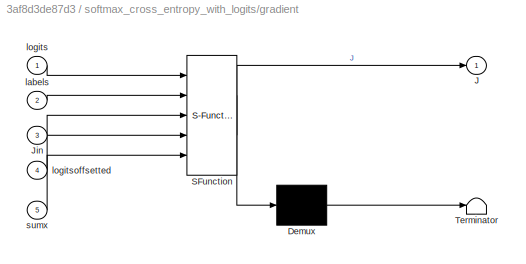
BLOCK [SubSystem] softmax_cross_entropy_with_logits/gradient
  Commented = on
  ErrorFcn = Stateflow.Translate.translate
  PermitHierarchicalResolution = ExplicitOnly
  Ports = [5, 1]
  RequestExecContextInheritance = off
  SFBlockType = MATLAB Function
  TreatAsAtomicUnit = on
  Variant = off
BLOCK [Demux] softmax_cross_entropy_with_logits/gradient/ Demux 
  Outputs = 1
  Ports = [1, 1]
BLOCK [S-Function] softmax_cross_entropy_with_logits/gradient/ SFunction 
  EnableBusSupport = off
  FunctionName = sf_sfun
  PortCounts = [5 2]
  Ports = [5, 2]
  SFcnIsStateOwnerBlock = off
  SFunctionDeploymentMode = off
  Tag = Stateflow S-Function ad_blocks 4
BLOCK [Terminator] softmax_cross_entropy_with_logits/gradient/ Terminator 
BLOCK [Outport] softmax_cross_entropy_with_logits/gradient/J
  IconDisplay = Port number
BLOCK [Inport] softmax_cross_entropy_with_logits/gradient/Jin
  IconDisplay = Port number
  Port = 3
BLOCK [Inport] softmax_cross_entropy_with_logits/gradient/labels
  IconDisplay = Port number
  Port = 2
BLOCK [Inport] softmax_cross_entropy_with_logits/gradient/logits
  IconDisplay = Port number
BLOCK [Inport] softmax_cross_entropy_with_logits/gradient/logitsoffsetted
  IconDisplay = Port number
  Port = 4
BLOCK [Inport] softmax_cross_entropy_with_logits/gradient/sumx
  IconDisplay = Port number
  Port = 5
BLOCK [SubSystem] transpose vector AD
  Ports = [2, 2]
  RequestExecContextInheritance = off
  Variant = off
BLOCK [Outport] transpose vector AD/JX
  IconDisplay = Port number
  Port = 2
BLOCK [Inport] transpose vector AD/JY
  IconDisplay = Port number
  Port = 2
BLOCK [PermuteDimensions] transpose vector AD/Permute Dimensions
BLOCK [Inport] transpose vector AD/X
  IconDisplay = Port number
BLOCK [Outport] transpose vector AD/Y
  IconDisplay = Port number
ANNOTATION (root): Activation Functions
ANNOTATION (root): Advanced Math
ANNOTATION (root): Core Linear and CNN Blocks
ANNOTATION (root): Final Part
ANNOTATION (root): Input and Session Managent
ANNOTATION (root): Math
ANNOTATION (root): Parameters and Gradient
ANNOTATION (root): Routing
ANNOTATION (root): Shaping
ANNOTATION (root): Size and Types
ANNOTATION Conv2D: ORANGE means Interpreted Code
ANNOTATION MaxPool: ORANGE means interpreted execution
ANNOTATION MaxPool: setup is based on the constant size extraction, then it produces in a constant way the indices then the evaluation produces also the indices I that are finally used in the gradient
ANNOTATION Share Value: Input value of X is split into two outputs X1 and X2 The incoming gradient from X1 and X2 are summed and down propagated to X This is used for subexpression multiple use
ANNOTATION Softmax AD: http://eli.thegreenplace.net/2016/the-softmax-function-and-its-derivative/
ANNOTATION Softmax AD: https://github.com/Theano/Theano/blob/master/theano/tensor/nnet/nnet.py
ANNOTATION inv AD: Jx = Jy*(-kron(y',y));
ANNOTATION mean all AD: All ones scaled by incoming scalar gradient and divided by elements
ANNOTATION mul AD for Scalar FX: A' J
ANNOTATION mul AD for Scalar FX: J B'
ANNOTATION mul AD for Scalar FX: [m,n]
ANNOTATION mul AD for Scalar FX: [m,q]
ANNOTATION mul AD for Scalar FX: [q,n]
ANNOTATION softmax_cross_entropy_with_logits: logitsmax = max(xlogits,[],classdim); % along class obj.logitsoffsetted = xlogits - repmat(logitsmax,1,classes); % broadcast class scratch = sum(exp(obj.logitsoffsetted),classdim); % exp and sum along class loss = sum((xlabels .* (repmat(log(scratch),1,classes) - obj.logitsoffsetted)),classdim); obj.xvalue = loss; obj.sumx = scratch; classes = size(obj.logits.xvalue,2); J = (exp(obj.logitsoffsette...<+75ch>
ANNOTATION transpose vector AD: The incoming JX is [p,q, m, 1] and the output [p,q,1,m] The compact form becomes [pq,m] as [pq,m] so no changes
NET Accumulate Matrix/In1:1 -> Accumulate Matrix/Reshape1:1, Accumulate Matrix/ReshapeX:2
LINE Accumulate Matrix/In2:1 -> Accumulate Matrix/Reshape2:1
LINE Accumulate Matrix/Matrix Concatenate:1 -> Accumulate Matrix/Sum of Elements:1
LINE Accumulate Matrix/Reshape1:1 -> Accumulate Matrix/Matrix Concatenate:1
LINE Accumulate Matrix/Reshape2:1 -> Accumulate Matrix/Matrix Concatenate:2
LINE Accumulate Matrix/ReshapeX:1 -> Accumulate Matrix/Out1:1
LINE Accumulate Matrix/Sum of Elements:1 -> Accumulate Matrix/ReshapeX:1
LINE Adam Descent Masked/Compare To Zero:1 -> Adam Descent Masked/Enable Gradient Rate:enable
LINE Adam Descent Masked/Constant1:1 -> Adam Descent Masked/Data Type Conversion1:1
NET Adam Descent Masked/Constant5:1 -> Adam Descent Masked/Compare To Zero:1, Adam Descent Masked/Enabled Adam Rate:enable, Adam Descent Masked/Switch:2
NET Adam Descent Masked/Data Type Conversion1:1 -> Adam Descent Masked/Enable Gradient Rate:1, Adam Descent Masked/Enabled Adam Rate:1
LINE Adam Descent Masked/Enable Gradient Rate/Adam Rate:1 -> Adam Descent Masked/Enable Gradient Rate/Out1:1
LINE Adam Descent Masked/Enable Gradient Rate/Beta1:1 -> Adam Descent Masked/Enable Gradient Rate/Adam Rate:2
LINE Adam Descent Masked/Enable Gradient Rate/Beta2:1 -> Adam Descent Masked/Enable Gradient Rate/Adam Rate:3
LINE Adam Descent Masked/Enable Gradient Rate/Data Type Conversion2:1 -> Adam Descent Masked/Enable Gradient Rate/Adam Rate:1
LINE Adam Descent Masked/Enable Gradient Rate/Epsilon:1 -> Adam Descent Masked/Enable Gradient Rate/Adam Rate:4
LINE Adam Descent Masked/Enable Gradient Rate/In1:1 -> Adam Descent Masked/Enable Gradient Rate/Data Type Conversion2:1
LINE Adam Descent Masked/Enable Gradient Rate:1 -> Adam Descent Masked/Switch:3
LINE Adam Descent Masked/Enabled Adam Rate/Adam Rate:1 -> Adam Descent Masked/Enabled Adam Rate/Out1:1
LINE Adam Descent Masked/Enabled Adam Rate/Constant2:1 -> Adam Descent Masked/Enabled Adam Rate/Adam Rate:2
LINE Adam Descent Masked/Enabled Adam Rate/Constant3:1 -> Adam Descent Masked/Enabled Adam Rate/Adam Rate:3
LINE Adam Descent Masked/Enabled Adam Rate/Constant4:1 -> Adam Descent Masked/Enabled Adam Rate/Adam Rate:4
LINE Adam Descent Masked/Enabled Adam Rate/In1:1 -> Adam Descent Masked/Enabled Adam Rate/Adam Rate:1
LINE Adam Descent Masked/Enabled Adam Rate:1 -> Adam Descent Masked/Switch:1
LINE Adam Descent Masked/Switch:1 -> Adam Descent Masked/Adam Params:1
LINE Adam Rate/Add:1 -> Adam Rate/MATLAB Function:4
NET Adam Rate/Beta1:1 -> Adam Rate/Bus Creator:3, Adam Rate/MATLAB Function:2
NET Adam Rate/Beta2:1 -> Adam Rate/Bus Creator:4, Adam Rate/MATLAB Function:3
LINE Adam Rate/Bus Creator:1 -> Adam Rate/Adam Params:1
LINE Adam Rate/Constant:1 -> Adam Rate/Add:1
LINE Adam Rate/Counter Free-Running:1 -> Adam Rate/Add:2
LINE Adam Rate/Epsilon:1 -> Adam Rate/Bus Creator:2
LINE Adam Rate/MATLAB Function:1 -> Adam Rate/Bus Creator:1
LINE Adam Rate/learning rate:1 -> Adam Rate/MATLAB Function:1
LINE Adam Update/Adam Params:1 -> Adam Update/Bus Selector:1
LINE Adam Update/Add:1 -> Adam Update/Index Vector:3
LINE Adam Update/Bus Selector:1 -> Adam Update/Make Increment:1
LINE Adam Update/Bus Selector:2 -> Adam Update/Make Increment:2
LINE Adam Update/Bus Selector:3 -> Adam Update/Make Increment:3
LINE Adam Update/Bus Selector:4 -> Adam Update/Make Increment:4
LINE Adam Update/Data Type Conversion Inherited:1 -> Adam Update/Delay:1
NET Adam Update/Delay:1 -> Adam Update/Add:2, Adam Update/Index Vector:2, Adam Update/Two-Way Connection1:1, Adam Update/X:1
LINE Adam Update/From1:1 -> Adam Update/Index Vector:1
LINE Adam Update/From:1 -> Adam Update/Make Increment:5
LINE Adam Update/Index Vector:1 -> Adam Update/Data Type Conversion Inherited:2
NET Adam Update/Initial Value (alt):1 -> Adam Update/Data Type Conversion Inherited:1, Adam Update/Delay:2, Adam Update/Make Increment:6
LINE Adam Update/Make Increment:1 -> Adam Update/Add:1
LINE Adam Update/Two-Way Connection1:1 -> Adam Update/Goto:1
LINE Adam as Gradient/Adam Rate:1 -> Adam as Gradient/Out1:1
LINE Adam as Gradient/Beta1:1 -> Adam as Gradient/Adam Rate:2
LINE Adam as Gradient/Beta2:1 -> Adam as Gradient/Adam Rate:3
LINE Adam as Gradient/Data Type Conversion2:1 -> Adam as Gradient/Adam Rate:1
LINE Adam as Gradient/Epsilon:1 -> Adam as Gradient/Adam Rate:4
LINE Adam as Gradient/Learning Rate1:1 -> Adam as Gradient/Data Type Conversion2:1
NET Adder/Add:1 -> Adder/Delay:1, Adder/Output:1
LINE Adder/Delay:1 -> Adder/Add:1
LINE Adder/Initial:1 -> Adder/Delay:2
LINE Adder/Input:1 -> Adder/Add:2
LINE BBatch Accuracy/Bus Creator:1 -> BBatch Accuracy/Out1:1
LINE BBatch Accuracy/Data Type Conversion1:1 -> BBatch Accuracy/W update:1
LINE BBatch Accuracy/Divide1:1 -> BBatch Accuracy/Bus Creator:3
LINE BBatch Accuracy/Divide:1 -> BBatch Accuracy/Bus Creator:2
LINE BBatch Accuracy/Epochs:1 -> BBatch Accuracy/Bus Creator:6
NET BBatch Accuracy/Input:1 -> BBatch Accuracy/Sum of Elements:1, BBatch Accuracy/Width:1
NET BBatch Accuracy/Reset:1 -> BBatch Accuracy/Samples Accum:2, BBatch Accuracy/W update1:1, BBatch Accuracy/W update:2
NET BBatch Accuracy/Samples Accum:1 -> BBatch Accuracy/Bus Creator:4, BBatch Accuracy/Divide1:1, BBatch Accuracy/Divide:2
LINE BBatch Accuracy/Sum of Elements:1 -> BBatch Accuracy/Data Type Conversion1:1
NET BBatch Accuracy/Total Samples:1 -> BBatch Accuracy/Bus Creator:5, BBatch Accuracy/Divide1:2
LINE BBatch Accuracy/W update1:1 -> BBatch Accuracy/Bus Creator:1
LINE BBatch Accuracy/W update:1 -> BBatch Accuracy/Divide:1
LINE BBatch Accuracy/Width:1 -> BBatch Accuracy/Samples Accum:1
LINE Conv2D/Gradient:1 -> Conv2D/Two-Way Connection1:1
LINE Conv2D/Gradient:2 -> Conv2D/Two-Way Connection3:1
NET Conv2D/S-Function:1 -> Conv2D/Gradient:4, Conv2D/Value:3
LINE Conv2D/S-Function:2 -> Conv2D/Value:4
NET Conv2D/Two-Way Connection1:1 -> Conv2D/Gradient:2, Conv2D/S-Function:1, Conv2D/Value:1
LINE Conv2D/Two-Way Connection2:1 -> Conv2D/Gradient:1
NET Conv2D/Two-Way Connection3:1 -> Conv2D/Gradient:3, Conv2D/S-Function:2, Conv2D/Value:2
LINE Conv2D/Value:1 -> Conv2D/Two-Way Connection2:1
LINE Conv2D/Value:2 -> Conv2D/Gradient:5
LINE Dropout 23/From1:1 -> Dropout 23/Two-Way Connection2:1
LINE Dropout 23/From2:1 -> Dropout 23/If full:2
LINE Dropout 23/From3:1 -> Dropout 23/Two-Way Connection1:1
LINE Dropout 23/From4:1 -> Dropout 23/If full:1
LINE Dropout 23/From5:1 -> Dropout 23/If rate:2
LINE Dropout 23/From6:1 -> Dropout 23/MATLAB System:1
LINE Dropout 23/From7:1 -> Dropout 23/Product:1
LINE Dropout 23/From:1 -> Dropout 23/If rate:1
LINE Dropout 23/If full/J:1 -> Dropout 23/If full/Jx:1
LINE Dropout 23/If full/x:1 -> Dropout 23/If full/y:1
LINE Dropout 23/If full:1 -> Dropout 23/Merge:1
LINE Dropout 23/If full:2 -> Dropout 23/Merge1:1
LINE Dropout 23/If rate/J:1 -> Dropout 23/If rate/Product:1
LINE Dropout 23/If rate/MATLAB System:1 -> Dropout 23/If rate/y:1
LINE Dropout 23/If rate/MATLAB System:2 -> Dropout 23/If rate/Product:2
LINE Dropout 23/If rate/Product:1 -> Dropout 23/If rate/Jx:1
LINE Dropout 23/If rate/rate:1 -> Dropout 23/If rate/MATLAB System:2
LINE Dropout 23/If rate/x:1 -> Dropout 23/If rate/MATLAB System:1
LINE Dropout 23/If rate:1 -> Dropout 23/Merge:2
LINE Dropout 23/If rate:2 -> Dropout 23/Merge1:2
LINE Dropout 23/If:1 -> Dropout 23/If full:ifaction
LINE Dropout 23/If:2 -> Dropout 23/If rate:ifaction
LINE Dropout 23/MATLAB System:1 -> Dropout 23/Goto4:1
LINE Dropout 23/MATLAB System:2 -> Dropout 23/Product:2
LINE Dropout 23/Merge1:1 -> Dropout 23/Goto3:1
LINE Dropout 23/Merge:1 -> Dropout 23/Goto1:1
LINE Dropout 23/Product:1 -> Dropout 23/Goto5:1
LINE Dropout 23/Two-Way Connection1:1 -> Dropout 23/Goto:1
LINE Dropout 23/Two-Way Connection2:1 -> Dropout 23/Goto2:1
NET Dropout 23/rate:1 -> Dropout 23/If rate:3, Dropout 23/If:1, Dropout 23/MATLAB System:2
LINE Dropout/From1:1 -> Dropout/Two-Way Connection2:1
LINE Dropout/From3:1 -> Dropout/Two-Way Connection1:1
LINE Dropout/From6:1 -> Dropout/MATLAB System:1
LINE Dropout/From7:1 -> Dropout/Product:2
LINE Dropout/MATLAB System:1 -> Dropout/Goto4:1
LINE Dropout/MATLAB System:2 -> Dropout/Product:1
LINE Dropout/Product:1 -> Dropout/Goto5:1
LINE Dropout/Two-Way Connection1:1 -> Dropout/Goto:1
LINE Dropout/Two-Way Connection2:1 -> Dropout/Goto2:1
LINE Dropout/rate:1 -> Dropout/MATLAB System:2
LINE Gradient Inversion/Gain:1 -> Gradient Inversion/Two-Way Connection3:1
LINE Gradient Inversion/Two-Way Connection2:1 -> Gradient Inversion/Gain:1
LINE Gradient Inversion/Two-Way Connection3:1 -> Gradient Inversion/Two-Way Connection2:1
NET Gradient Update/Adder:1 -> Gradient Update/Current:1, Gradient Update/Two-Way Connection1:1
LINE Gradient Update/Initial:1 -> Gradient Update/Adder:1
LINE Gradient Update/Learning Rate:1 -> Gradient Update/Unary Minus:1
LINE Gradient Update/Product:1 -> Gradient Update/Adder:2
LINE Gradient Update/Two-Way Connection1:1 -> Gradient Update/Product:1
LINE Gradient Update/Unary Minus:1 -> Gradient Update/Product:2
LINE Hard and Softmax/Labels Hot:1 -> Hard and Softmax/softmax_cross_entropy_with_logits:1
LINE Hard and Softmax/MATLAB System1:1 -> Hard and Softmax/Label Output:1
LINE Hard and Softmax/forward viewer2:1 -> Hard and Softmax/MATLAB System1:1
LINE Input no J/In1:1 -> Input no J/Two-Way Connection1:1
LINE Input no J/Two-Way Connection1:1 -> Input no J/Terminator:1
LINE Input no J1/Two-Way Connection1:1 -> Input no J1/JX:1
LINE Input no J1/X:1 -> Input no J1/Two-Way Connection1:1
NET MNIST Train Test/Case Test/Test  Set1/MATLAB System:1 -> MNIST Train Test/Case Test/Test  Set1/Variable Selector:4, MNIST Train Test/Case Test/Test  Set1/indices:1
LINE MNIST Train Test/Case Test/Test  Set1/S-Function1:1 -> MNIST Train Test/Case Test/Test  Set1/Terminator2:1
LINE MNIST Train Test/Case Test/Test  Set1/S-Function1:2 -> MNIST Train Test/Case Test/Test  Set1/Variable Selector:2
LINE MNIST Train Test/Case Test/Test  Set1/S-Function1:3 -> MNIST Train Test/Case Test/Test  Set1/Variable Selector:3
LINE MNIST Train Test/Case Test/Test  Set1/S-Function1:4 -> MNIST Train Test/Case Test/Test  Set1/Variable Selector:1
LINE MNIST Train Test/Case Test/Test  Set1/Variable Selector:1 -> MNIST Train Test/Case Test/Test  Set1/X:1
LINE MNIST Train Test/Case Test/Test  Set1/Variable Selector:2 -> MNIST Train Test/Case Test/Test  Set1/Y:1
LINE MNIST Train Test/Case Test/Test  Set1/Variable Selector:3 -> MNIST Train Test/Case Test/Test  Set1/Yhot:1
LINE MNIST Train Test/Case Test/Test  Set1:1 -> MNIST Train Test/Case Test/Y:1
LINE MNIST Train Test/Case Test/Test  Set1:2 -> MNIST Train Test/Case Test/Yhot:1
LINE MNIST Train Test/Case Test/Test  Set1:3 -> MNIST Train Test/Case Test/X:1
LINE MNIST Train Test/Case Test/Test  Set1:4 -> MNIST Train Test/Case Test/indices:1
LINE MNIST Train Test/Case Test:1 -> MNIST Train Test/Merge:2
LINE MNIST Train Test/Case Test:2 -> MNIST Train Test/Merge1:2
LINE MNIST Train Test/Case Test:3 -> MNIST Train Test/Merge2:2
LINE MNIST Train Test/Case Test:4 -> MNIST Train Test/Merge3:2
NET MNIST Train Test/Case Train/Train Set/MATLAB System:1 -> MNIST Train Test/Case Train/Train Set/Variable Selector:4, MNIST Train Test/Case Train/Train Set/indices:1
LINE MNIST Train Test/Case Train/Train Set/S-Function1:1 -> MNIST Train Test/Case Train/Train Set/Terminator2:1
LINE MNIST Train Test/Case Train/Train Set/S-Function1:2 -> MNIST Train Test/Case Train/Train Set/Variable Selector:2
LINE MNIST Train Test/Case Train/Train Set/S-Function1:3 -> MNIST Train Test/Case Train/Train Set/Variable Selector:3
LINE MNIST Train Test/Case Train/Train Set/S-Function1:4 -> MNIST Train Test/Case Train/Train Set/Variable Selector:1
LINE MNIST Train Test/Case Train/Train Set/Variable Selector:1 -> MNIST Train Test/Case Train/Train Set/X:1
LINE MNIST Train Test/Case Train/Train Set/Variable Selector:2 -> MNIST Train Test/Case Train/Train Set/Y:1
LINE MNIST Train Test/Case Train/Train Set/Variable Selector:3 -> MNIST Train Test/Case Train/Train Set/Yhot:1
LINE MNIST Train Test/Case Train/Train Set:1 -> MNIST Train Test/Case Train/Y:1
LINE MNIST Train Test/Case Train/Train Set:2 -> MNIST Train Test/Case Train/Yhot:1
LINE MNIST Train Test/Case Train/Train Set:3 -> MNIST Train Test/Case Train/X:1
LINE MNIST Train Test/Case Train/Train Set:4 -> MNIST Train Test/Case Train/indices:1
LINE MNIST Train Test/Case Train:1 -> MNIST Train Test/Merge:1
LINE MNIST Train Test/Case Train:2 -> MNIST Train Test/Merge1:1
LINE MNIST Train Test/Case Train:3 -> MNIST Train Test/Merge2:1
LINE MNIST Train Test/Case Train:4 -> MNIST Train Test/Merge3:1
LINE MNIST Train Test/In1:1 -> MNIST Train Test/Switch Case:1
LINE MNIST Train Test/Merge1:1 -> MNIST Train Test/Yhot:1
LINE MNIST Train Test/Merge2:1 -> MNIST Train Test/X:1
LINE MNIST Train Test/Merge3:1 -> MNIST Train Test/indices:1
LINE MNIST Train Test/Merge:1 -> MNIST Train Test/Y :1
LINE MNIST Train Test/Switch Case:1 -> MNIST Train Test/Case Train:ifaction
LINE MNIST Train Test/Switch Case:2 -> MNIST Train Test/Case Test:ifaction
LINE MaxPool/Gradient:1 -> MaxPool/Two-Way Connection1:1
NET MaxPool/S-Function:1 -> MaxPool/Gradient:7, MaxPool/Value :2
LINE MaxPool/S-Function:2 -> MaxPool/Gradient:2
LINE MaxPool/S-Function:3 -> MaxPool/Gradient:4
NET MaxPool/S-Function:4 -> MaxPool/Gradient:5, MaxPool/Value :3
LINE MaxPool/S-Function:5 -> MaxPool/Gradient:8
NET MaxPool/Two-Way Connection1:1 -> MaxPool/Gradient:6, MaxPool/S-Function:1, MaxPool/Value :1
LINE MaxPool/Two-Way Connection2:1 -> MaxPool/Gradient:1
LINE MaxPool/Value :1 -> MaxPool/Two-Way Connection2:1
LINE MaxPool/Value :2 -> MaxPool/Gradient:3
LINE Memberwise/JX memberwise:1 -> Memberwise/Product:2
LINE Memberwise/JY:1 -> Memberwise/Product:1
LINE Memberwise/Product:1 -> Memberwise/JX:1
LINE Minus /Add:1 -> Minus /Two-Way Connection1:1
LINE Minus /Gain:1 -> Minus /Two-Way Connection4:1
NET Minus /Two-Way Connection1:1 -> Minus /Gain:1, Minus /Two-Way Connection2:1
LINE Minus /Two-Way Connection2:1 -> Minus /Add:1
LINE Minus /Two-Way Connection4:1 -> Minus /Add:2
LINE Minus Broadcast1/Plus Broadcast FX:1 -> Minus Broadcast1/Two-Way Connection:1
LINE Minus Broadcast1/Plus Broadcast GRAD:1 -> Minus Broadcast1/Unary Minus1:1
NET Minus Broadcast1/Two-Way Connection1:1 -> Minus Broadcast1/Plus Broadcast FX:1, Minus Broadcast1/Plus Broadcast GRAD:1
NET Minus Broadcast1/Two-Way Connection2:1 -> Minus Broadcast1/Plus Broadcast GRAD:2, Minus Broadcast1/Unary Minus:1
NET Minus Broadcast1/Two-Way Connection:1 -> Minus Broadcast1/Plus Broadcast GRAD:3, Minus Broadcast1/Two-Way Connection1:1
LINE Minus Broadcast1/Unary Minus1:1 -> Minus Broadcast1/Two-Way Connection2:1
LINE Minus Broadcast1/Unary Minus:1 -> Minus Broadcast1/Plus Broadcast FX:2
LINE Plus Broadcast Old/Plus Broadcast FX:1 -> Plus Broadcast Old/Two-Way Connection:1
LINE Plus Broadcast Old/Plus Broadcast GRAD:1 -> Plus Broadcast Old/Two-Way Connection2:1
NET Plus Broadcast Old/Two-Way Connection1:1 -> Plus Broadcast Old/Plus Broadcast FX:1, Plus Broadcast Old/Plus Broadcast GRAD:1
NET Plus Broadcast Old/Two-Way Connection2:1 -> Plus Broadcast Old/Plus Broadcast FX:2, Plus Broadcast Old/Plus Broadcast GRAD:2
NET Plus Broadcast Old/Two-Way Connection:1 -> Plus Broadcast Old/Plus Broadcast GRAD:3, Plus Broadcast Old/Two-Way Connection1:1
NET Plus Broadcast/Two-Way Connection1:1 -> Plus Broadcast/function:1, Plus Broadcast/gradient:1
NET Plus Broadcast/Two-Way Connection2:1 -> Plus Broadcast/function:2, Plus Broadcast/gradient:2
LINE Plus Broadcast/Two-Way Connection:1 -> Plus Broadcast/gradient:3
LINE Plus Broadcast/function:1 -> Plus Broadcast/Two-Way Connection:1
LINE Plus Broadcast/gradient:1 -> Plus Broadcast/Two-Way Connection1:1
LINE Plus Broadcast/gradient:2 -> Plus Broadcast/Two-Way Connection2:1
LINE Plus/Add:1 -> Plus/Two-Way Connection:1
LINE Plus/Two-Way Connection1:1 -> Plus/Add:1
LINE Plus/Two-Way Connection2:1 -> Plus/Add:2
NET Plus/Two-Way Connection:1 -> Plus/Two-Way Connection1:1, Plus/Two-Way Connection2:1
LINE Relu/MATLAB System:1 -> Relu/Two-Way Connection1:1
NET Relu/Two-Way Connection1:1 -> Relu/MATLAB System:1, Relu/max(x,0):1
LINE Relu/Two-Way Connection2:1 -> Relu/MATLAB System:2
LINE Relu/max(x,0):1 -> Relu/Two-Way Connection2:1
LINE Root/Constant1:1 -> Root/Two-Way Connection1:1
LINE Root/Signal Specification:1 -> Root/Loss:1
LINE Root/Two-Way Connection1:1 -> Root/Signal Specification:1
LINE Share Value/Add:1 -> Share Value/Two-Way Connection2:1
LINE Share Value/Two-Way Connection1:1 -> Share Value/Add:2
NET Share Value/Two-Way Connection2:1 -> Share Value/Two-Way Connection1:1, Share Value/Two-Way Connection3:1
LINE Share Value/Two-Way Connection3:1 -> Share Value/Add:1
LINE Sin AD CC1/Two-Way Connection1:1 -> Sin AD CC1/inv AD:1
LINE Sin AD CC1/Two-Way Connection:1 -> Sin AD CC1/inv AD:2
LINE Sin AD CC1/inv AD:1 -> Sin AD CC1/Two-Way Connection:1
LINE Sin AD CC1/inv AD:2 -> Sin AD CC1/Two-Way Connection1:1
LINE Sin AD CC2/Two-Way Connection1:1 -> Sin AD CC2/transpose vector AD:1
LINE Sin AD CC2/Two-Way Connection:1 -> Sin AD CC2/transpose vector AD:2
LINE Sin AD CC2/transpose vector AD:1 -> Sin AD CC2/Two-Way Connection:1
LINE Sin AD CC2/transpose vector AD:2 -> Sin AD CC2/Two-Way Connection1:1
LINE Softmax AB+b/In1:1 -> Softmax AB+b/softmax_cross_entropy_with_logits:1
LINE Softmax AD CC/Memberwise:1 -> Softmax AD CC/Two-Way Connection1:1
LINE Softmax AD CC/Softmax AD:1 -> Softmax AD CC/Two-Way Connection:1
LINE Softmax AD CC/Softmax AD:2 -> Softmax AD CC/Memberwise:2
LINE Softmax AD CC/Two-Way Connection1:1 -> Softmax AD CC/Softmax AD:1
LINE Softmax AD CC/Two-Way Connection:1 -> Softmax AD CC/Memberwise:1
LINE Softmax AD/MATLAB Function1:1 -> Softmax AD/Y:1
LINE Softmax AD/MATLAB Function2:1 -> Softmax AD/dX:1
NET Softmax AD/X:1 -> Softmax AD/MATLAB Function1:1, Softmax AD/MATLAB Function2:1
LINE Subsystem/Constant1:1 -> Subsystem/Switch:3
LINE Subsystem/Constant:1 -> Subsystem/Switch:1
LINE Subsystem/Switch:1 -> Subsystem/real rate:1
LINE Subsystem/dotrain:1 -> Subsystem/Switch:2
NET Wb CNN/Adam Params:1 -> Wb CNN/Adam Update1:1, Wb CNN/Adam Update:1
LINE Wb CNN/Adam Update1:1 -> Wb CNN/Signal Specification:1
LINE Wb CNN/Adam Update:1 -> Wb CNN/Signal Specification1:1
LINE Wb CNN/Bus Creator:1 -> Wb CNN/Wbout:1
LINE Wb CNN/Signal Specification1:1 -> Wb CNN/Bus Creator:1
LINE Wb CNN/Signal Specification:1 -> Wb CNN/Bus Creator:2
LINE Wb CNN/W_conv1:1 -> Wb CNN/Adam Update:2
LINE Wb CNN/b_conv1:1 -> Wb CNN/Adam Update1:2
NET Wb dense/Adam Params:1 -> Wb dense/W Update:1, Wb dense/b Update:1
LINE Wb dense/Bus Creator:1 -> Wb dense/Wbout:1
LINE Wb dense/Signal Specification1:1 -> Wb dense/Bus Creator:1
LINE Wb dense/Signal Specification:1 -> Wb dense/Bus Creator:2
LINE Wb dense/W Update:1 -> Wb dense/Signal Specification1:1
LINE Wb dense/W_conv1:1 -> Wb dense/W Update:2
LINE Wb dense/b Update:1 -> Wb dense/Signal Specification:1
LINE Wb dense/b_conv1:1 -> Wb dense/b Update:2
LINE forward viewer/Two-Way Connection1:1 -> forward viewer/Two-Way Connection2:1
NET forward viewer/Two-Way Connection2:1 -> forward viewer/Two-Way Connection1:1, forward viewer/x:1
NET forward viewer1/Two-Way Connection1:1 -> forward viewer1/J:1, forward viewer1/Two-Way Connection2:1
LINE forward viewer1/Two-Way Connection2:1 -> forward viewer1/Two-Way Connection1:1
LINE inv AD/Gain:1 -> inv AD/Product:1
LINE inv AD/JY:1 -> inv AD/Product:2
NET inv AD/Product1:1 -> inv AD/Gain:1, inv AD/Product:3, inv AD/Y:1
LINE inv AD/Product:1 -> inv AD/JX:1
LINE inv AD/X:1 -> inv AD/Product1:1
LINE mean all AD/Divide:1 -> mean all AD/Two-Way Connection:1
LINE mean all AD/MATLAB System:1 -> mean all AD/Two-Way Connection1:1
LINE mean all AD/Sum of Elements:1 -> mean all AD/Divide:1
NET mean all AD/Two-Way Connection1:1 -> mean all AD/MATLAB System:1, mean all AD/Sum of Elements:1, mean all AD/Width:1
LINE mean all AD/Two-Way Connection:1 -> mean all AD/MATLAB System:2
LINE mean all AD/Width:1 -> mean all AD/Divide:2
LINE mul AD CC/Two-Way Connection1:1 -> mul AD CC/mul AD for Scalar FX:1
LINE mul AD CC/Two-Way Connection2:1 -> mul AD CC/mul AD for Scalar FX:2
LINE mul AD CC/Two-Way Connection:1 -> mul AD CC/mul AD for Scalar FX:3
LINE mul AD CC/mul AD for Scalar FX:1 -> mul AD CC/Two-Way Connection:1
LINE mul AD CC/mul AD for Scalar FX:2 -> mul AD CC/Two-Way Connection1:1
LINE mul AD CC/mul AD for Scalar FX:3 -> mul AD CC/Two-Way Connection2:1
NET mul AD for Scalar FX/A:1 -> mul AD for Scalar FX/Divide:1, mul AD for Scalar FX/MATLAB System1:2
NET mul AD for Scalar FX/B:1 -> mul AD for Scalar FX/Divide:2, mul AD for Scalar FX/MATLAB System:2
LINE mul AD for Scalar FX/Divide:1 -> mul AD for Scalar FX/Y:1
NET mul AD for Scalar FX/J:1 -> mul AD for Scalar FX/MATLAB System1:1, mul AD for Scalar FX/MATLAB System:1
LINE mul AD for Scalar FX/MATLAB System1:1 -> mul AD for Scalar FX/JB:1
LINE mul AD for Scalar FX/MATLAB System:1 -> mul AD for Scalar FX/JA:1
NET rehape aD/Two-Way Connection1:1 -> rehape aD/function:1, rehape aD/gradient:1
LINE rehape aD/Two-Way Connection:1 -> rehape aD/gradient:2
LINE rehape aD/function:1 -> rehape aD/Two-Way Connection:1
LINE rehape aD/gradient:1 -> rehape aD/Two-Way Connection1:1
NET softmax_cross_entropy_with_logits/Labels:1 -> softmax_cross_entropy_with_logits/MATLAB System1:2, softmax_cross_entropy_with_logits/MATLAB System:2
LINE softmax_cross_entropy_with_logits/MATLAB System1:1 -> softmax_cross_entropy_with_logits/Two-Way Connection1:1
LINE softmax_cross_entropy_with_logits/MATLAB System:1 -> softmax_cross_entropy_with_logits/Two-Way Connection:1
LINE softmax_cross_entropy_with_logits/MATLAB System:2 -> softmax_cross_entropy_with_logits/MATLAB System1:4
LINE softmax_cross_entropy_with_logits/MATLAB System:3 -> softmax_cross_entropy_with_logits/MATLAB System1:5
NET softmax_cross_entropy_with_logits/Two-Way Connection1:1 -> softmax_cross_entropy_with_logits/MATLAB System1:1, softmax_cross_entropy_with_logits/MATLAB System:1
LINE softmax_cross_entropy_with_logits/Two-Way Connection:1 -> softmax_cross_entropy_with_logits/MATLAB System1:3
LINE transpose vector AD/JY:1 -> transpose vector AD/JX:1
LINE transpose vector AD/Permute Dimensions:1 -> transpose vector AD/Y:1
LINE transpose vector AD/X:1 -> transpose vector AD/Permute Dimensions:1
PLINE AB+b/A:RConn1 -- AB+b/mul AD CC:LConn1
PLINE AB+b/B:RConn1 -- AB+b/mul AD CC:LConn2
PLINE AB+b/Plus Broadcast:LConn1 -- AB+b/mul AD CC:RConn1
PLINE AB+b/Plus Broadcast:LConn2 -- AB+b/b:RConn1
PLINE AB+b/Plus Broadcast:RConn1 -- AB+b/Y:RConn1
PLINE Adam Update/Conn1:RConn1 -- Adam Update/Two-Way Connection1:RConn1
PLINE Conv2D/Two-Way Connection1:RConn1 -- Conv2D/X:RConn1
PLINE Conv2D/Two-Way Connection2:RConn1 -- Conv2D/Y:RConn1
PLINE Conv2D/Two-Way Connection3:RConn1 -- Conv2D/W:RConn1
PLINE Dropout 23/Two-Way Connection1:RConn1 -- Dropout 23/X:RConn1
PLINE Dropout 23/Two-Way Connection2:RConn1 -- Dropout 23/Y:RConn1
PLINE Dropout/Two-Way Connection1:RConn1 -- Dropout/X:RConn1
PLINE Dropout/Two-Way Connection2:RConn1 -- Dropout/Y:RConn1
PLINE Gradient Inversion/Two-Way Connection2:RConn1 -- Gradient Inversion/Y:RConn1
PLINE Gradient Inversion/Two-Way Connection3:RConn1 -- Gradient Inversion/X:RConn1
PLINE Gradient Update/Conn1:RConn1 -- Gradient Update/Two-Way Connection1:RConn1
PLINE Hard and Softmax/X:RConn1 -- Hard and Softmax/forward viewer2:LConn1
PLINE Hard and Softmax/Y:RConn1 -- Hard and Softmax/softmax_cross_entropy_with_logits:RConn1
PLINE Hard and Softmax/forward viewer2:RConn1 -- Hard and Softmax/softmax_cross_entropy_with_logits:LConn1
PLINE Input no J/Conn1:RConn1 -- Input no J/Two-Way Connection1:RConn1
PLINE Input no J1/(X,JX):RConn1 -- Input no J1/Two-Way Connection1:RConn1
PLINE MaxPool/Two-Way Connection1:RConn1 -- MaxPool/X:RConn1
PLINE MaxPool/Two-Way Connection2:RConn1 -- MaxPool/Y:RConn1
PLINE Minus /A:RConn1 -- Minus /Two-Way Connection2:RConn1
PLINE Minus /B:RConn1 -- Minus /Two-Way Connection4:RConn1
PLINE Minus /Two-Way Connection1:RConn1 -- Minus /Y:RConn1
PLINE Minus Broadcast1/A:RConn1 -- Minus Broadcast1/Two-Way Connection1:RConn1
PLINE Minus Broadcast1/B:RConn1 -- Minus Broadcast1/Two-Way Connection2:RConn1
PLINE Minus Broadcast1/Two-Way Connection:RConn1 -- Minus Broadcast1/Y:RConn1
PLINE Plus Broadcast Old/A:RConn1 -- Plus Broadcast Old/Two-Way Connection1:RConn1
PLINE Plus Broadcast Old/B:RConn1 -- Plus Broadcast Old/Two-Way Connection2:RConn1
PLINE Plus Broadcast Old/Two-Way Connection:RConn1 -- Plus Broadcast Old/Y:RConn1
PLINE Plus Broadcast/A:RConn1 -- Plus Broadcast/Two-Way Connection1:RConn1
PLINE Plus Broadcast/B:RConn1 -- Plus Broadcast/Two-Way Connection2:RConn1
PLINE Plus Broadcast/Two-Way Connection:RConn1 -- Plus Broadcast/Y:RConn1
PLINE Plus/A:RConn1 -- Plus/Two-Way Connection1:RConn1
PLINE Plus/B:RConn1 -- Plus/Two-Way Connection2:RConn1
PLINE Plus/Two-Way Connection:RConn1 -- Plus/Y:RConn1
PLINE Relu AB+b/A:RConn1 -- Relu AB+b/mul AD CC:LConn1
PLINE Relu AB+b/B:RConn1 -- Relu AB+b/mul AD CC:LConn2
PLINE Relu AB+b/Plus Broadcast:LConn1 -- Relu AB+b/mul AD CC:RConn1
PLINE Relu AB+b/Plus Broadcast:LConn2 -- Relu AB+b/b:RConn1
PLINE Relu AB+b/Plus Broadcast:RConn1 -- Relu AB+b/Relu:LConn1
PLINE Relu AB+b/Relu:RConn1 -- Relu AB+b/Y:RConn1
PLINE Relu/Two-Way Connection1:RConn1 -- Relu/X:RConn1
PLINE Relu/Two-Way Connection2:RConn1 -- Relu/Y:RConn1
PLINE Root/Conn1:RConn1 -- Root/Two-Way Connection1:RConn1
PLINE Share Value/Two-Way Connection1:RConn1 -- Share Value/X1:RConn1
PLINE Share Value/Two-Way Connection2:RConn1 -- Share Value/X:RConn1
PLINE Share Value/Two-Way Connection3:RConn1 -- Share Value/X2:RConn1
PLINE Sin AD CC1/Two-Way Connection1:RConn1 -- Sin AD CC1/X:RConn1
PLINE Sin AD CC1/Two-Way Connection:RConn1 -- Sin AD CC1/Y:RConn1
PLINE Sin AD CC2/Two-Way Connection1:RConn1 -- Sin AD CC2/X:RConn1
PLINE Sin AD CC2/Two-Way Connection:RConn1 -- Sin AD CC2/Y:RConn1
PLINE Softmax AB+b/A:RConn1 -- Softmax AB+b/mul AD CC:LConn1
PLINE Softmax AB+b/B:RConn1 -- Softmax AB+b/mul AD CC:LConn2
PLINE Softmax AB+b/Plus Broadcast:LConn1 -- Softmax AB+b/mul AD CC:RConn1
PLINE Softmax AB+b/Plus Broadcast:LConn2 -- Softmax AB+b/b:RConn1
PLINE Softmax AB+b/Plus Broadcast:RConn1 -- Softmax AB+b/softmax_cross_entropy_with_logits:LConn1
PLINE Softmax AB+b/Y:RConn1 -- Softmax AB+b/softmax_cross_entropy_with_logits:RConn1
PLINE Softmax AD CC/Two-Way Connection1:RConn1 -- Softmax AD CC/X:RConn1
PLINE Softmax AD CC/Two-Way Connection:RConn1 -- Softmax AD CC/Y:RConn1
PLINE Wb CNN/Adam Update1:RConn1 -- Wb CNN/b:RConn1
PLINE Wb CNN/Adam Update:RConn1 -- Wb CNN/W:RConn1
PLINE Wb dense/W Update:RConn1 -- Wb dense/W:RConn1
PLINE Wb dense/b Update:RConn1 -- Wb dense/b:RConn1
PLINE forward viewer/Two-Way Connection1:RConn1 -- forward viewer/Y:RConn1
PLINE forward viewer/Two-Way Connection2:RConn1 -- forward viewer/X:RConn1
PLINE forward viewer1/Two-Way Connection1:RConn1 -- forward viewer1/Y:RConn1
PLINE forward viewer1/Two-Way Connection2:RConn1 -- forward viewer1/X:RConn1
PLINE mean all AD/Two-Way Connection1:RConn1 -- mean all AD/X:RConn1
PLINE mean all AD/Two-Way Connection:RConn1 -- mean all AD/Y:RConn1
PLINE mul AD CC/A:RConn1 -- mul AD CC/Two-Way Connection1:RConn1
PLINE mul AD CC/B:RConn1 -- mul AD CC/Two-Way Connection2:RConn1
PLINE mul AD CC/Two-Way Connection:RConn1 -- mul AD CC/Y:RConn1
PLINE rehape aD/Two-Way Connection1:RConn1 -- rehape aD/X:RConn1
PLINE rehape aD/Two-Way Connection:RConn1 -- rehape aD/Y:RConn1
PLINE softmax_cross_entropy_with_logits/Logits:RConn1 -- softmax_cross_entropy_with_logits/Two-Way Connection1:RConn1
PLINE softmax_cross_entropy_with_logits/Two-Way Connection:RConn1 -- softmax_cross_entropy_with_logits/Y:RConn1
note: NET lines group one-source signal fan-out (src -> all destinations, sorted); 1:1 wires keep LINE
CHART Adam Rate/MATLAB Function states=1 transitions=1
  STATE_LABEL 'eML_blk_kernel()'
  STATE_LABEL 'SCRIPT:\nfunction ltr = fcn(learningrate,beta1,beta2,t)\n\nif beta1 == 1 || beta2 == 1\n    ltr = -learningrate;\nelse\n    ltr = - learningrate * sqrt(1 - beta2^t) / (1 - beta1^t);\nend\n'
CHART softmax_cross_entropy_with_logits/function states=1 transitions=1
  STATE_LABEL 'eML_blk_kernel()'
  STATE_LABEL 'SCRIPT:\nfunction [loss,logitsoffsetted,sumx] = fcn(logits,labels)\nclasses = size(logits,2);\nclassdim = 2;\nlogitsmax = max(logits,[],classdim); % batch x 1\n            logitsoffsetted = logits - repmat(logitsmax(:),1,classes); % batch x classes\n            sumx = sum(exp(logitsoffsetted),classdim); % exp and sum along class: batch x 1\n            loss = sum((labels .* (repmat(log(sumx),1,classes) -...<+45ch>'
CHART softmax_cross_entropy_with_logits/gradient states=1 transitions=1
  STATE_LABEL 'eML_blk_kernel()'
  STATE_LABEL 'SCRIPT:\nfunction J  = fcn(logits,labels,Jin,logitsoffsetted,sumx)\n\n% output = batch x 1\n% logits = batch x C\nclasses = size(logits,2);\na = (exp(logitsoffsetted) ./ repmat(sumx,1,classes)); % batch x 1 WHY?\nJo = a-labels; % batch x C\nJ = repmat(Jin,1,classes).*Jo; \n'
CHART Softmax AD/MATLAB Function1 states=1 transitions=1
  STATE_LABEL 'eML_blk_kernel()'
  STATE_LABEL 'SCRIPT:\nfunction y = fcn(u)\n%#codegen\nexps = exp(u-max(u(:)));\ny = exps/sum(exps(:));\n\n'
CHART Softmax AD/MATLAB Function2 states=1 transitions=1
  STATE_LABEL 'eML_blk_kernel()'
  STATE_LABEL 'SCRIPT:\nfunction y = fcn(u)\n\ny = 1./(1+exp(-u));'
CHART Size states=1 transitions=1
  STATE_LABEL 'eML_blk_kernel()'
  STATE_LABEL 'SCRIPT:\nfunction [n,s] = fcn(u)\n\nn = ndims(u);\ns = [size(u,1) size(u,2) size(u,3) size(u,4)];\n'
